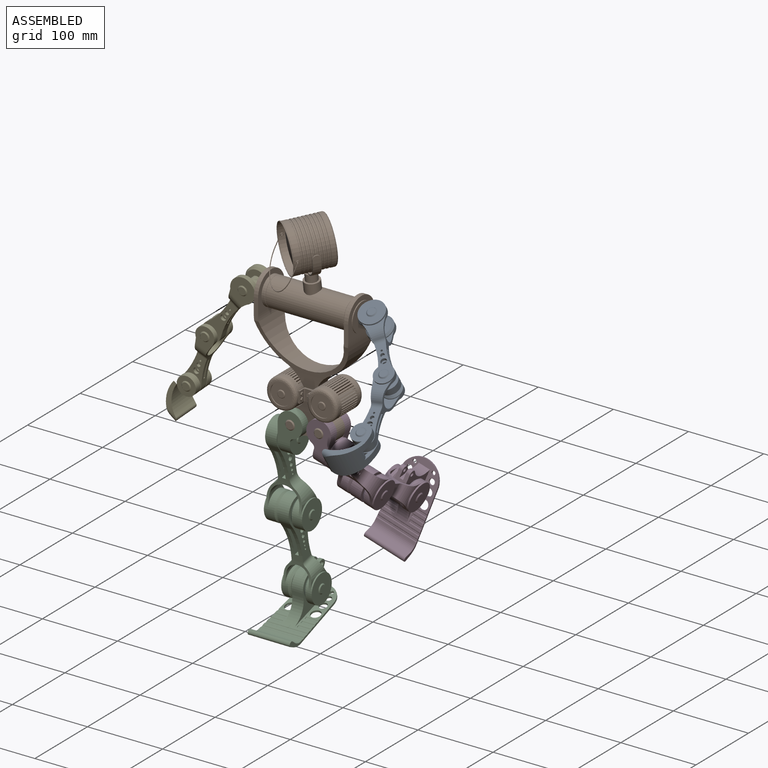
[diagram: assembled view]
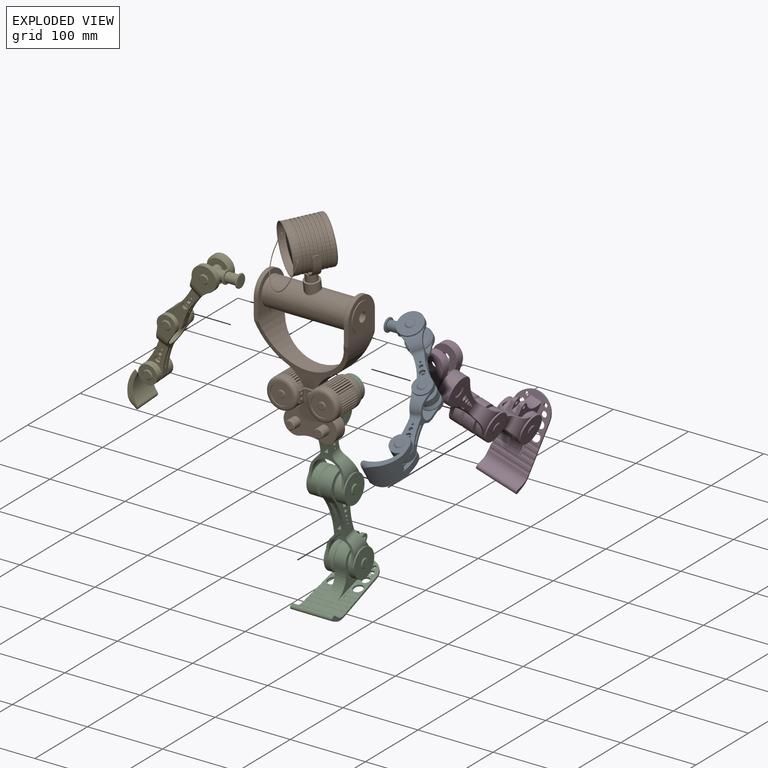
[diagram: exploded view]
GUIDED TOUR — MATED ASSEMBLY WITH SUBASSEMBLIES (Onshape document 580a5c8aa3d22f110acb5839, AutoMate assembly 580a5c8aa3d22f110acb5839_b2d923b6b7351d410fa2428a_1e528fcd05521dbd207c472a_default)

This assembly has 22 component occurrences arranged in 5 top-level units: 0 individual components plus 5 subassemblies (S0, S1, S2, S3, S4). The tour has two levels: first the top level, where each subassembly is treated as one rigid unit; then each subassembly is toured internally in its own section (nesting deeper than one subassembly level is flattened into its subassembly's section).

Components are labeled P0..P21 across the whole record; subassembly units are labeled S0..S4. A mate is a constraint between two units; its type names the relative motion it leaves free:
  FASTENED — locks the two components together rigidly (no relative motion),
  REVOLUTE — leaves rotation about the listed axis free (a hinge).
Axis/direction vectors are unit vectors and 'through' points are millimeter coordinates, both in the assembly's world frame.

TOP-LEVEL MATES (between units; each subassembly's internal mates are listed in its own section)
  1. REVOLUTE "left_shoulder_sagittal": S0 <-> S1, axis (-1.000, 0.000, 0.000) through (64.17, -11.40, 77.47) mm
  2. REVOLUTE "right_hip_frontal": S1 <-> S2, axis (0.000, -1.000, 0.000) through (-19.01, -30.45, -67.52) mm
  3. REVOLUTE "left_hip_frontal": S1 <-> S3, axis (0.000, -1.000, 0.000) through (19.09, -30.45, -67.52) mm

TOP-LEVEL ASSEMBLY ORDER
  1. S1 — the base component [order heuristic]
  2. S0 [order heuristic]
  3. S2 [order heuristic]
  4. S3 [order heuristic]
  5. S4 [order heuristic]
Order-tag legend:
  [order heuristic] — this assembly is geometrically interlocked (no collision-free removal order exists), so components are listed in mate-graph order; insertion feasibility is not verified.

Of the 22 component occurrences, 5 carry the full construction recipe — the FeatureScript program that regenerates the part's solid from scratch; the rest are supplied as boundary geometry only. Each toured unit is shown spotlighted twice — assembled, then exploded with a leader line back to its socket (green = recipe-attached component, orange = geometry-only, blue = subassembly unit; the rest desaturated gray).
NOTE — document 2 of 3 of this assembly tour. The two overview renders and the header above are repeated from document 1; the component sections below continue where the previous document stopped.
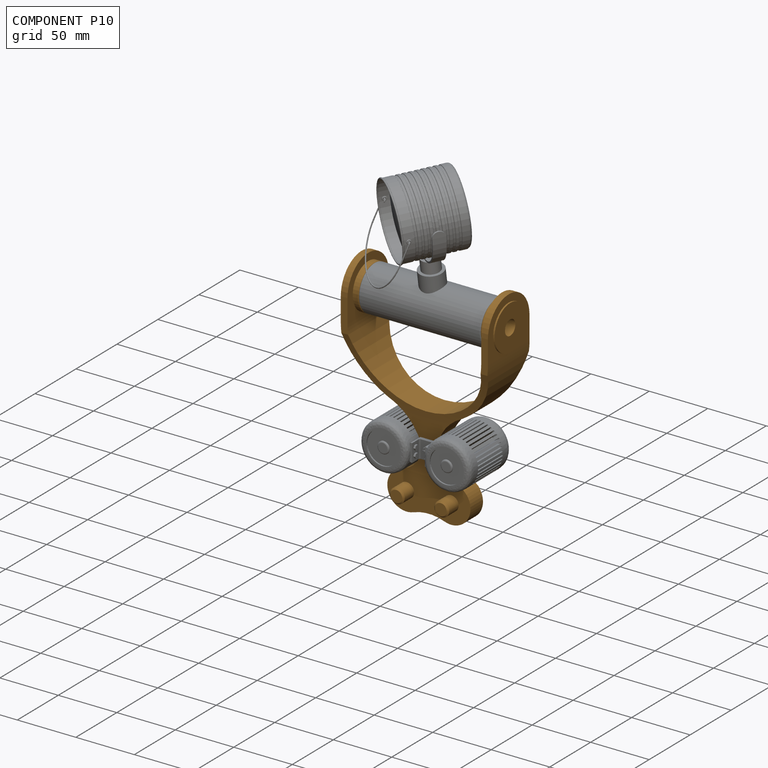
[diagram: component P10 — assembled]
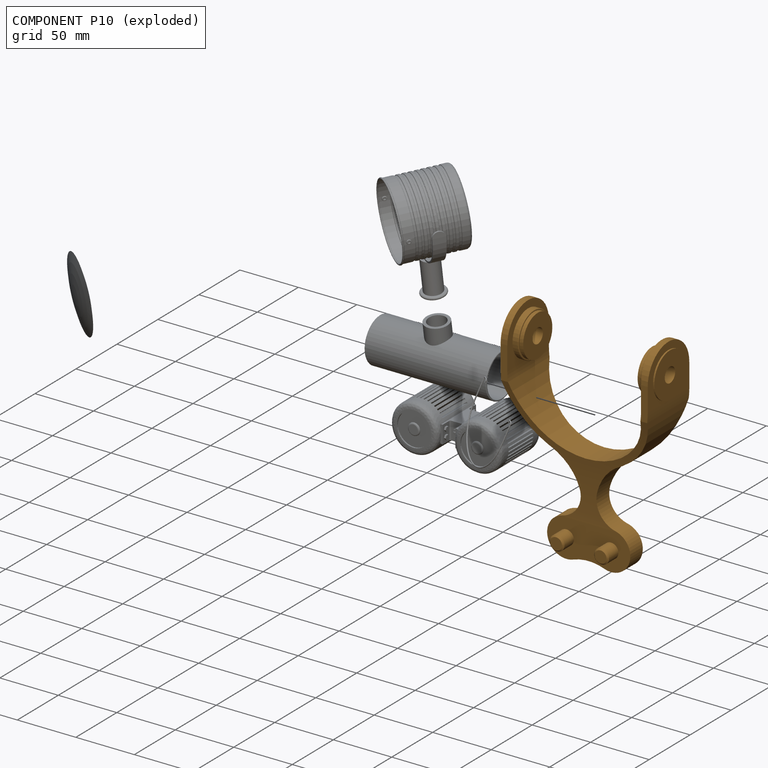
[diagram: component P10 — exploded]
COMPONENT P10 — geometry summary (no construction recipe available for this part):
  bounding box: 186.9 x 128.3 x 50.8 mm
  B-rep topology: 1 solid, 54 faces, 252 edges
  volume: 130386 mm^3 (11% of its bounding box)
  symmetry: 2-fold rotationally symmetric about the z axis; mirror-symmetric across its x mid-plane, y mid-plane
Held by: FASTENED mate "Fastened 1" to P4; REVOLUTE mate "neck_sagittal" to P12; REVOLUTE mate "neck_sagittal" to P12; FASTENED mate "Fastened 1" to P4.
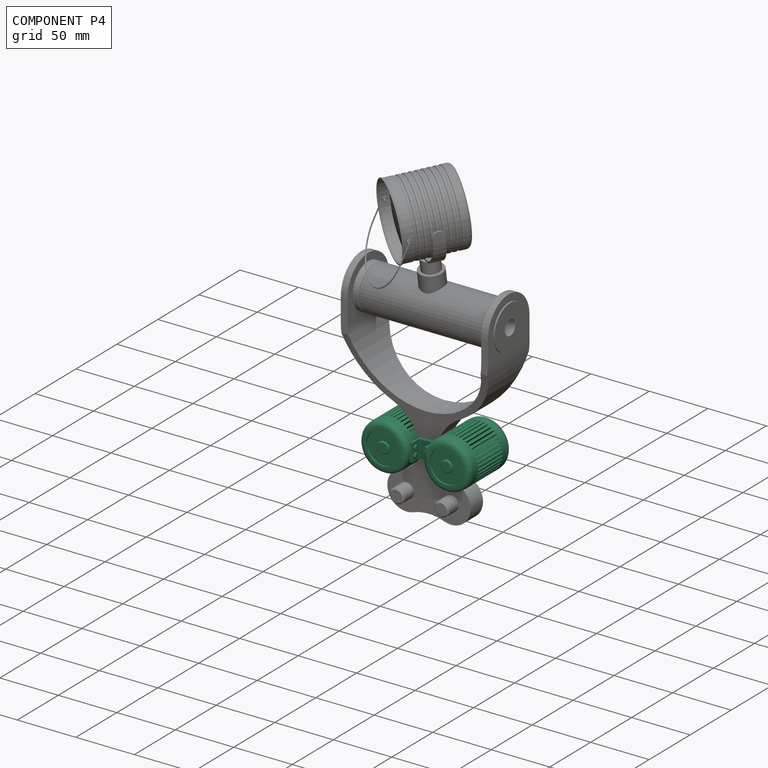
[diagram: component P4 — assembled]
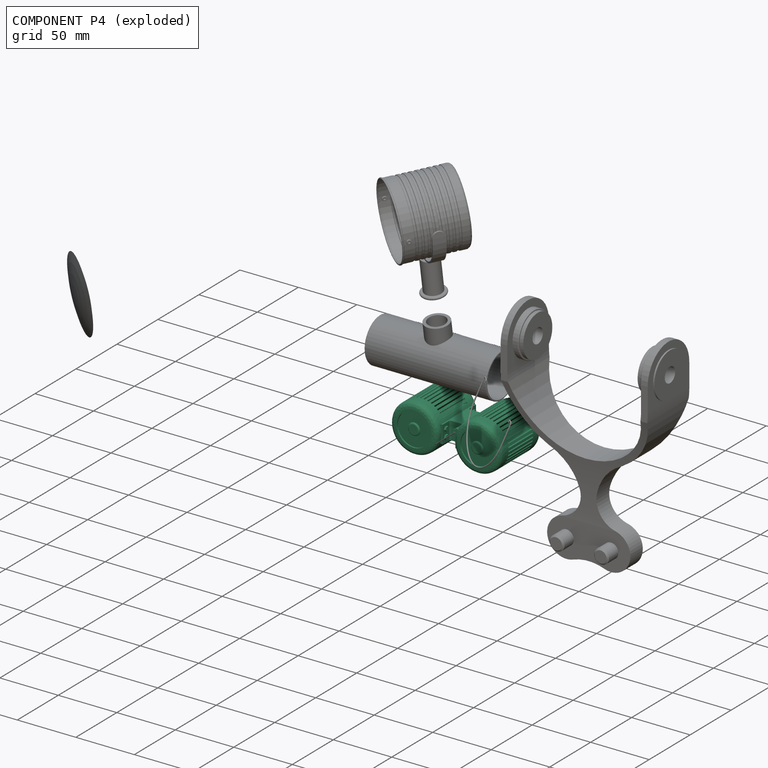
[diagram: component P4 — exploded]
COMPONENT P4 — recipe-attached (CADFS 00294734, mesh-verified: the recipe's output STEP matches this component's geometry to below the mesh-comparison resolution (tessellation chordal tolerance ~0.172 mm)).
Held by: FASTENED mate "Fastened 1" to P10; FASTENED mate "Fastened 1" to P10.
Construction recipe (FeatureScript — the CAD program that rebuilds this solid; sketch coordinates are in the units given by the * unit suffixes, e.g. mm):

FeatureScript 1511;
import(path : "onshape/std/geometry.fs", version : "1511.0");
import(path : "onshape/std/common.fs", version : "1511.0");
const mm = millimeter;
const VERTEX = EntityType.VERTEX;
const EDGE = EntityType.EDGE;
const FACE = EntityType.FACE;
const BODY = EntityType.BODY;
function v(x, y){return vector(x, y);}
function OD(order){return orderDisambiguation(order);}
function OSD(set){return originalSetDisambiguation(set);}
function TD(topology){return topologyDisambiguation(topology);}
function TDD(query){return trueDependencyDisambiguation(query);}
function sQuery(a, b, c) {return sketchEntityQuery(a, b, c);}

annotation { "Feature Type Name" : "Feature", "Feature Type Description" : "" }
export const myFeature = defineFeature(function(context is Context, id is Id, definition is map)
    precondition{}
    {
        {
            var Q0;
            Q0=qCreatedBy(makeId("Front.planeOp"),FACE);
            var sketch = newSketch(context, id + "F0", { "sketchPlane" : qUnion([Q0])});
            skArc(sketch, "E0", {"start": v(26.53, 38.5) * mm, "mid": v(31.42, 78.66) * mm, "end": v(18.88, 40.2) * mm});
            skCircle(sketch, "E1", {"center": v(-27.02, 58.82) * mm, "radius": 20.32 * mm});
            skArc(sketch, "E2", {"start": v(18.88, 40.2) * mm, "mid": v(22.62, 38.98) * mm, "end": v(26.53, 38.5) * mm});
            skSolve(sketch);
        }
        {
            var Q0;
            Q0=qSketchRegion(id+"F0",true);
            extrude(context, id + "F1", {"entities" : qUnion([Q0]), "endBound" : BoundingType.SYMMETRIC, "depth" : 50.8 * mm});
        }
        {
            var Q0;
            Q0=qCreatedBy(makeId("Front.planeOp"),FACE);
            var sketch = newSketch(context, id + "F2", { "sketchPlane" : qUnion([Q0])});
            skLineSegment(sketch, "E3.1.0", {"start": v(13.83, 74.28) * mm, "end": v(17.03, 70.33) * mm});
            skLineSegment(sketch, "E3.1.1", {"start": v(13.07, 73.6) * mm, "end": v(16.65, 69.99) * mm});
            skLineSegment(sketch, "E3.1.2", {"start": v(13.07, 73.6) * mm, "end": v(13.83, 74.28) * mm});
            skLineSegment(sketch, "E3.1.3", {"start": v(16.65, 69.99) * mm, "end": v(17.03, 70.33) * mm, "construction": true});
            skLineSegment(sketch, "E3.1.4", {"start": v(16.65, 69.99) * mm, "end": v(17.03, 70.33) * mm});
            skPoint(sketch, "E4", {"position": v(27.02, 58.82) * mm});
            skPoint(sketch, "E5", {"position": v(-27.02, 58.82) * mm});
            skLineSegment(sketch, "E6", {"start": v(27.02, 58.82) * mm, "end": v(13.45, 73.94) * mm, "construction": true});
            skLineSegment(sketch, "E7.1.0", {"start": v(-13.07, 73.6) * mm, "end": v(-16.65, 69.99) * mm});
            skLineSegment(sketch, "E7.1.1", {"start": v(-13.83, 74.28) * mm, "end": v(-17.03, 70.33) * mm});
            skLineSegment(sketch, "E7.1.2", {"start": v(-13.83, 74.28) * mm, "end": v(-13.07, 73.6) * mm});
            skLineSegment(sketch, "E7.1.3", {"start": v(-17.03, 70.33) * mm, "end": v(-16.65, 69.99) * mm, "construction": true});
            skLineSegment(sketch, "E7.1.4", {"start": v(-17.03, 70.33) * mm, "end": v(-16.65, 69.99) * mm});
            skLineSegment(sketch, "E8", {"start": v(-27.02, 58.82) * mm, "end": v(-13.45, 73.94) * mm, "construction": true});
            skLineSegment(sketch, "E9.1.0", {"start": v(11.57, 72.03) * mm, "end": v(15.35, 68.63) * mm});
            skLineSegment(sketch, "E9.1.1", {"start": v(10.93, 71.24) * mm, "end": v(15.03, 68.23) * mm});
            skLineSegment(sketch, "E9.1.2", {"start": v(10.93, 71.24) * mm, "end": v(11.57, 72.03) * mm});
            skLineSegment(sketch, "E9.1.3", {"start": v(15.03, 68.23) * mm, "end": v(15.35, 68.63) * mm, "construction": true});
            skLineSegment(sketch, "E9.1.4", {"start": v(15.03, 68.23) * mm, "end": v(15.35, 68.63) * mm});
            skLineSegment(sketch, "E9.2.0", {"start": v(9.7, 69.45) * mm, "end": v(13.96, 66.68) * mm});
            skLineSegment(sketch, "E9.2.1", {"start": v(9.18, 68.57) * mm, "end": v(13.7, 66.24) * mm});
            skLineSegment(sketch, "E9.2.2", {"start": v(9.18, 68.57) * mm, "end": v(9.7, 69.45) * mm});
            skLineSegment(sketch, "E9.2.3", {"start": v(13.7, 66.24) * mm, "end": v(13.96, 66.68) * mm, "construction": true});
            skLineSegment(sketch, "E9.2.4", {"start": v(13.7, 66.24) * mm, "end": v(13.96, 66.68) * mm});
            skLineSegment(sketch, "E9.15.0", {"start": v(25.41, 38.55) * mm, "end": v(25.94, 43.62) * mm});
            skLineSegment(sketch, "E9.15.1", {"start": v(26.43, 38.5) * mm, "end": v(26.45, 43.59) * mm});
            skLineSegment(sketch, "E9.15.2", {"start": v(26.43, 38.5) * mm, "end": v(25.41, 38.55) * mm});
            skLineSegment(sketch, "E9.15.3", {"start": v(26.45, 43.59) * mm, "end": v(25.94, 43.62) * mm, "construction": true});
            skLineSegment(sketch, "E9.15.4", {"start": v(26.45, 43.59) * mm, "end": v(25.94, 43.62) * mm});
            skLineSegment(sketch, "E9.16.0", {"start": v(28.6, 38.55) * mm, "end": v(28.33, 43.63) * mm});
            skLineSegment(sketch, "E9.16.1", {"start": v(29.61, 38.66) * mm, "end": v(28.84, 43.69) * mm});
            skLineSegment(sketch, "E9.16.2", {"start": v(29.61, 38.66) * mm, "end": v(28.6, 38.55) * mm});
            skLineSegment(sketch, "E9.16.3", {"start": v(28.84, 43.69) * mm, "end": v(28.33, 43.63) * mm, "construction": true});
            skLineSegment(sketch, "E9.16.4", {"start": v(28.84, 43.69) * mm, "end": v(28.33, 43.63) * mm});
            skLineSegment(sketch, "E9.17.0", {"start": v(31.75, 39.05) * mm, "end": v(30.7, 44.03) * mm});
            skLineSegment(sketch, "E9.17.1", {"start": v(32.73, 39.31) * mm, "end": v(31.18, 44.16) * mm});
            skLineSegment(sketch, "E9.17.2", {"start": v(32.73, 39.31) * mm, "end": v(31.75, 39.05) * mm});
            skLineSegment(sketch, "E9.17.3", {"start": v(31.18, 44.16) * mm, "end": v(30.7, 44.03) * mm, "construction": true});
            skLineSegment(sketch, "E9.17.4", {"start": v(31.18, 44.16) * mm, "end": v(30.7, 44.03) * mm});
            skLineSegment(sketch, "E9.18.0", {"start": v(34.79, 40.03) * mm, "end": v(32.96, 44.78) * mm});
            skLineSegment(sketch, "E9.18.1", {"start": v(35.72, 40.45) * mm, "end": v(33.42, 44.99) * mm});
            skLineSegment(sketch, "E9.18.2", {"start": v(35.72, 40.45) * mm, "end": v(34.79, 40.03) * mm});
            skLineSegment(sketch, "E9.18.3", {"start": v(33.42, 44.99) * mm, "end": v(32.96, 44.78) * mm, "construction": true});
            skLineSegment(sketch, "E9.18.4", {"start": v(33.42, 44.99) * mm, "end": v(32.96, 44.78) * mm});
            skLineSegment(sketch, "E9.19.0", {"start": v(37.63, 41.48) * mm, "end": v(35.08, 45.89) * mm});
            skLineSegment(sketch, "E9.19.1", {"start": v(38.48, 42.03) * mm, "end": v(35.5, 46.16) * mm});
            skLineSegment(sketch, "E9.19.2", {"start": v(38.48, 42.03) * mm, "end": v(37.63, 41.48) * mm});
            skLineSegment(sketch, "E9.19.3", {"start": v(35.5, 46.16) * mm, "end": v(35.08, 45.89) * mm, "construction": true});
            skLineSegment(sketch, "E9.19.4", {"start": v(35.5, 46.16) * mm, "end": v(35.08, 45.89) * mm});
            skLineSegment(sketch, "E9.20.0", {"start": v(40.21, 43.35) * mm, "end": v(37, 47.3) * mm});
            skLineSegment(sketch, "E9.20.1", {"start": v(40.97, 44.03) * mm, "end": v(37.38, 47.65) * mm});
            skLineSegment(sketch, "E9.20.2", {"start": v(40.97, 44.03) * mm, "end": v(40.21, 43.35) * mm});
            skLineSegment(sketch, "E9.20.3", {"start": v(37.38, 47.65) * mm, "end": v(37, 47.3) * mm, "construction": true});
            skLineSegment(sketch, "E9.20.4", {"start": v(37.38, 47.65) * mm, "end": v(37, 47.3) * mm});
            skLineSegment(sketch, "E9.21.0", {"start": v(42.47, 45.6) * mm, "end": v(38.68, 49.01) * mm});
            skLineSegment(sketch, "E9.21.1", {"start": v(43.1, 46.4) * mm, "end": v(39, 49.4) * mm});
            skLineSegment(sketch, "E9.21.2", {"start": v(43.1, 46.4) * mm, "end": v(42.47, 45.6) * mm});
            skLineSegment(sketch, "E9.21.3", {"start": v(39, 49.4) * mm, "end": v(38.68, 49.01) * mm, "construction": true});
            skLineSegment(sketch, "E9.21.4", {"start": v(39, 49.4) * mm, "end": v(38.68, 49.01) * mm});
            skLineSegment(sketch, "E9.22.0", {"start": v(44.34, 48.19) * mm, "end": v(40.07, 50.96) * mm});
            skLineSegment(sketch, "E9.22.1", {"start": v(44.85, 49.07) * mm, "end": v(40.33, 51.4) * mm});
            skLineSegment(sketch, "E9.22.2", {"start": v(44.85, 49.07) * mm, "end": v(44.34, 48.19) * mm});
            skLineSegment(sketch, "E9.22.3", {"start": v(40.33, 51.4) * mm, "end": v(40.07, 50.96) * mm, "construction": true});
            skLineSegment(sketch, "E9.22.4", {"start": v(40.33, 51.4) * mm, "end": v(40.07, 50.96) * mm});
            skLineSegment(sketch, "E9.23.0", {"start": v(45.8, 51.03) * mm, "end": v(41.14, 53.1) * mm});
            skLineSegment(sketch, "E9.23.1", {"start": v(46.16, 51.98) * mm, "end": v(41.33, 53.57) * mm});
            skLineSegment(sketch, "E9.23.2", {"start": v(46.16, 51.98) * mm, "end": v(45.8, 51.03) * mm});
            skLineSegment(sketch, "E9.23.3", {"start": v(41.33, 53.57) * mm, "end": v(41.14, 53.1) * mm, "construction": true});
            skLineSegment(sketch, "E9.23.4", {"start": v(41.33, 53.57) * mm, "end": v(41.14, 53.1) * mm});
            skLineSegment(sketch, "E9.24.0", {"start": v(46.78, 54.06) * mm, "end": v(41.86, 55.37) * mm});
            skLineSegment(sketch, "E9.24.1", {"start": v(47, 55.05) * mm, "end": v(41.97, 55.87) * mm});
            skLineSegment(sketch, "E9.24.2", {"start": v(47, 55.05) * mm, "end": v(46.78, 54.06) * mm});
            skLineSegment(sketch, "E9.24.3", {"start": v(41.97, 55.87) * mm, "end": v(41.86, 55.37) * mm, "construction": true});
            skLineSegment(sketch, "E9.24.4", {"start": v(41.97, 55.87) * mm, "end": v(41.86, 55.37) * mm});
            skLineSegment(sketch, "E9.25.0", {"start": v(47.28, 57.21) * mm, "end": v(42.22, 57.74) * mm});
            skLineSegment(sketch, "E9.25.1", {"start": v(47.34, 58.23) * mm, "end": v(42.25, 58.25) * mm});
            skLineSegment(sketch, "E9.25.2", {"start": v(47.34, 58.23) * mm, "end": v(47.28, 57.21) * mm});
            skLineSegment(sketch, "E9.25.3", {"start": v(42.25, 58.25) * mm, "end": v(42.22, 57.74) * mm, "construction": true});
            skLineSegment(sketch, "E9.25.4", {"start": v(42.25, 58.25) * mm, "end": v(42.22, 57.74) * mm});
            skLineSegment(sketch, "E9.26.0", {"start": v(47.28, 60.4) * mm, "end": v(42.2, 60.13) * mm});
            skLineSegment(sketch, "E9.26.1", {"start": v(47.18, 61.41) * mm, "end": v(42.15, 60.64) * mm});
            skLineSegment(sketch, "E9.26.2", {"start": v(47.18, 61.41) * mm, "end": v(47.28, 60.4) * mm});
            skLineSegment(sketch, "E9.26.3", {"start": v(42.15, 60.64) * mm, "end": v(42.2, 60.13) * mm, "construction": true});
            skLineSegment(sketch, "E9.26.4", {"start": v(42.15, 60.64) * mm, "end": v(42.2, 60.13) * mm});
            skLineSegment(sketch, "E9.27.0", {"start": v(46.79, 63.55) * mm, "end": v(41.8, 62.5) * mm});
            skLineSegment(sketch, "E9.27.1", {"start": v(46.52, 64.53) * mm, "end": v(41.68, 62.98) * mm});
            skLineSegment(sketch, "E9.27.2", {"start": v(46.52, 64.53) * mm, "end": v(46.79, 63.55) * mm});
            skLineSegment(sketch, "E9.27.3", {"start": v(41.68, 62.98) * mm, "end": v(41.8, 62.5) * mm, "construction": true});
            skLineSegment(sketch, "E9.27.4", {"start": v(41.68, 62.98) * mm, "end": v(41.8, 62.5) * mm});
            skLineSegment(sketch, "E9.28.0", {"start": v(45.8, 66.59) * mm, "end": v(41.05, 64.76) * mm});
            skLineSegment(sketch, "E9.28.1", {"start": v(45.4, 67.51) * mm, "end": v(40.85, 65.22) * mm});
            skLineSegment(sketch, "E9.28.2", {"start": v(45.4, 67.51) * mm, "end": v(45.8, 66.59) * mm});
            skLineSegment(sketch, "E9.28.3", {"start": v(40.85, 65.22) * mm, "end": v(41.05, 64.76) * mm, "construction": true});
            skLineSegment(sketch, "E9.28.4", {"start": v(40.85, 65.22) * mm, "end": v(41.05, 64.76) * mm});
            skLineSegment(sketch, "E9.29.0", {"start": v(44.36, 69.43) * mm, "end": v(39.95, 66.88) * mm});
            skLineSegment(sketch, "E9.29.1", {"start": v(43.8, 70.28) * mm, "end": v(39.67, 67.3) * mm});
            skLineSegment(sketch, "E9.29.2", {"start": v(43.8, 70.28) * mm, "end": v(44.36, 69.43) * mm});
            skLineSegment(sketch, "E9.29.3", {"start": v(39.67, 67.3) * mm, "end": v(39.95, 66.88) * mm, "construction": true});
            skLineSegment(sketch, "E9.29.4", {"start": v(39.67, 67.3) * mm, "end": v(39.95, 66.88) * mm});
            skLineSegment(sketch, "E9.30.0", {"start": v(42.48, 72) * mm, "end": v(38.53, 68.8) * mm});
            skLineSegment(sketch, "E9.30.1", {"start": v(41.8, 72.77) * mm, "end": v(38.2, 69.18) * mm});
            skLineSegment(sketch, "E9.30.2", {"start": v(41.8, 72.77) * mm, "end": v(42.48, 72) * mm});
            skLineSegment(sketch, "E9.30.3", {"start": v(38.2, 69.18) * mm, "end": v(38.53, 68.8) * mm, "construction": true});
            skLineSegment(sketch, "E9.30.4", {"start": v(38.2, 69.18) * mm, "end": v(38.53, 68.8) * mm});
            skLineSegment(sketch, "E9.31.0", {"start": v(40.23, 74.27) * mm, "end": v(36.83, 70.48) * mm});
            skLineSegment(sketch, "E9.31.1", {"start": v(39.44, 74.9) * mm, "end": v(36.43, 70.8) * mm});
            skLineSegment(sketch, "E9.31.2", {"start": v(39.44, 74.9) * mm, "end": v(40.23, 74.27) * mm});
            skLineSegment(sketch, "E9.31.3", {"start": v(36.43, 70.8) * mm, "end": v(36.83, 70.48) * mm, "construction": true});
            skLineSegment(sketch, "E9.31.4", {"start": v(36.43, 70.8) * mm, "end": v(36.83, 70.48) * mm});
            skLineSegment(sketch, "E9.32.0", {"start": v(37.65, 76.14) * mm, "end": v(34.88, 71.87) * mm});
            skLineSegment(sketch, "E9.32.1", {"start": v(36.77, 76.65) * mm, "end": v(34.44, 72.13) * mm});
            skLineSegment(sketch, "E9.32.2", {"start": v(36.77, 76.65) * mm, "end": v(37.65, 76.14) * mm});
            skLineSegment(sketch, "E9.32.3", {"start": v(34.44, 72.13) * mm, "end": v(34.88, 71.87) * mm, "construction": true});
            skLineSegment(sketch, "E9.32.4", {"start": v(34.44, 72.13) * mm, "end": v(34.88, 71.87) * mm});
            skLineSegment(sketch, "E9.33.0", {"start": v(34.8, 77.6) * mm, "end": v(32.74, 72.94) * mm});
            skLineSegment(sketch, "E9.33.1", {"start": v(33.86, 77.96) * mm, "end": v(32.27, 73.13) * mm});
            skLineSegment(sketch, "E9.33.2", {"start": v(33.86, 77.96) * mm, "end": v(34.8, 77.6) * mm});
            skLineSegment(sketch, "E9.33.3", {"start": v(32.27, 73.13) * mm, "end": v(32.74, 72.94) * mm, "construction": true});
            skLineSegment(sketch, "E9.33.4", {"start": v(32.27, 73.13) * mm, "end": v(32.74, 72.94) * mm});
            skLineSegment(sketch, "E9.34.0", {"start": v(31.78, 78.58) * mm, "end": v(30.46, 73.66) * mm});
            skLineSegment(sketch, "E9.34.1", {"start": v(30.78, 78.8) * mm, "end": v(29.96, 73.77) * mm});
            skLineSegment(sketch, "E9.34.2", {"start": v(30.78, 78.8) * mm, "end": v(31.78, 78.58) * mm});
            skLineSegment(sketch, "E9.34.3", {"start": v(29.96, 73.77) * mm, "end": v(30.46, 73.66) * mm, "construction": true});
            skLineSegment(sketch, "E9.34.4", {"start": v(29.96, 73.77) * mm, "end": v(30.46, 73.66) * mm});
            skLineSegment(sketch, "E9.35.0", {"start": v(28.63, 79.08) * mm, "end": v(28.1, 74.02) * mm});
            skLineSegment(sketch, "E9.35.1", {"start": v(27.61, 79.14) * mm, "end": v(27.59, 74.05) * mm});
            skLineSegment(sketch, "E9.35.2", {"start": v(27.61, 79.14) * mm, "end": v(28.63, 79.08) * mm});
            skLineSegment(sketch, "E9.35.3", {"start": v(27.59, 74.05) * mm, "end": v(28.1, 74.02) * mm, "construction": true});
            skLineSegment(sketch, "E9.35.4", {"start": v(27.59, 74.05) * mm, "end": v(28.1, 74.02) * mm});
            skLineSegment(sketch, "E9.36.0", {"start": v(25.44, 79.08) * mm, "end": v(25.7, 74) * mm});
            skLineSegment(sketch, "E9.36.1", {"start": v(24.42, 78.98) * mm, "end": v(25.2, 73.95) * mm});
            skLineSegment(sketch, "E9.36.2", {"start": v(24.42, 78.98) * mm, "end": v(25.44, 79.08) * mm});
            skLineSegment(sketch, "E9.36.3", {"start": v(25.2, 73.95) * mm, "end": v(25.7, 74) * mm, "construction": true});
            skLineSegment(sketch, "E9.36.4", {"start": v(25.2, 73.95) * mm, "end": v(25.7, 74) * mm});
            skLineSegment(sketch, "E9.37.0", {"start": v(22.28, 78.59) * mm, "end": v(23.35, 73.6) * mm});
            skLineSegment(sketch, "E9.37.1", {"start": v(21.3, 78.32) * mm, "end": v(22.86, 73.48) * mm});
            skLineSegment(sketch, "E9.37.2", {"start": v(21.3, 78.32) * mm, "end": v(22.28, 78.59) * mm});
            skLineSegment(sketch, "E9.37.3", {"start": v(22.86, 73.48) * mm, "end": v(23.35, 73.6) * mm, "construction": true});
            skLineSegment(sketch, "E9.37.4", {"start": v(22.86, 73.48) * mm, "end": v(23.35, 73.6) * mm});
            skLineSegment(sketch, "E9.38.0", {"start": v(19.25, 77.6) * mm, "end": v(21.08, 72.85) * mm});
            skLineSegment(sketch, "E9.38.1", {"start": v(18.32, 77.19) * mm, "end": v(20.61, 72.65) * mm});
            skLineSegment(sketch, "E9.38.2", {"start": v(18.32, 77.19) * mm, "end": v(19.25, 77.6) * mm});
            skLineSegment(sketch, "E9.38.3", {"start": v(20.61, 72.65) * mm, "end": v(21.08, 72.85) * mm, "construction": true});
            skLineSegment(sketch, "E9.38.4", {"start": v(20.61, 72.65) * mm, "end": v(21.08, 72.85) * mm});
            skLineSegment(sketch, "E9.39.0", {"start": v(16.4, 76.15) * mm, "end": v(18.96, 71.75) * mm});
            skLineSegment(sketch, "E9.39.1", {"start": v(15.56, 75.6) * mm, "end": v(18.53, 71.47) * mm});
            skLineSegment(sketch, "E9.39.2", {"start": v(15.56, 75.6) * mm, "end": v(16.4, 76.15) * mm});
            skLineSegment(sketch, "E9.39.3", {"start": v(18.53, 71.47) * mm, "end": v(18.96, 71.75) * mm, "construction": true});
            skLineSegment(sketch, "E9.39.4", {"start": v(18.53, 71.47) * mm, "end": v(18.96, 71.75) * mm});
            skLineSegment(sketch, "E10.1.0", {"start": v(-15.56, 75.6) * mm, "end": v(-18.53, 71.47) * mm});
            skLineSegment(sketch, "E10.1.1", {"start": v(-16.4, 76.15) * mm, "end": v(-18.96, 71.75) * mm});
            skLineSegment(sketch, "E10.1.2", {"start": v(-16.4, 76.15) * mm, "end": v(-15.56, 75.6) * mm});
            skLineSegment(sketch, "E10.1.3", {"start": v(-18.96, 71.75) * mm, "end": v(-18.53, 71.47) * mm, "construction": true});
            skLineSegment(sketch, "E10.1.4", {"start": v(-18.96, 71.75) * mm, "end": v(-18.53, 71.47) * mm});
            skLineSegment(sketch, "E10.2.0", {"start": v(-18.32, 77.19) * mm, "end": v(-20.61, 72.65) * mm});
            skLineSegment(sketch, "E10.2.1", {"start": v(-19.25, 77.6) * mm, "end": v(-21.08, 72.85) * mm});
            skLineSegment(sketch, "E10.2.2", {"start": v(-19.25, 77.6) * mm, "end": v(-18.32, 77.19) * mm});
            skLineSegment(sketch, "E10.2.3", {"start": v(-21.08, 72.85) * mm, "end": v(-20.61, 72.65) * mm, "construction": true});
            skLineSegment(sketch, "E10.2.4", {"start": v(-21.08, 72.85) * mm, "end": v(-20.61, 72.65) * mm});
            skLineSegment(sketch, "E10.3.0", {"start": v(-21.3, 78.32) * mm, "end": v(-22.86, 73.48) * mm});
            skLineSegment(sketch, "E10.3.1", {"start": v(-22.28, 78.59) * mm, "end": v(-23.35, 73.6) * mm});
            skLineSegment(sketch, "E10.3.2", {"start": v(-22.28, 78.59) * mm, "end": v(-21.3, 78.32) * mm});
            skLineSegment(sketch, "E10.3.3", {"start": v(-23.35, 73.6) * mm, "end": v(-22.86, 73.48) * mm, "construction": true});
            skLineSegment(sketch, "E10.3.4", {"start": v(-23.35, 73.6) * mm, "end": v(-22.86, 73.48) * mm});
            skLineSegment(sketch, "E10.4.0", {"start": v(-24.42, 78.98) * mm, "end": v(-25.2, 73.95) * mm});
            skLineSegment(sketch, "E10.4.1", {"start": v(-25.44, 79.08) * mm, "end": v(-25.7, 74) * mm});
            skLineSegment(sketch, "E10.4.2", {"start": v(-25.44, 79.08) * mm, "end": v(-24.42, 78.98) * mm});
            skLineSegment(sketch, "E10.4.3", {"start": v(-25.7, 74) * mm, "end": v(-25.2, 73.95) * mm, "construction": true});
            skLineSegment(sketch, "E10.4.4", {"start": v(-25.7, 74) * mm, "end": v(-25.2, 73.95) * mm});
            skLineSegment(sketch, "E10.5.0", {"start": v(-27.61, 79.14) * mm, "end": v(-27.59, 74.05) * mm});
            skLineSegment(sketch, "E10.5.1", {"start": v(-28.63, 79.08) * mm, "end": v(-28.1, 74.02) * mm});
            skLineSegment(sketch, "E10.5.2", {"start": v(-28.63, 79.08) * mm, "end": v(-27.61, 79.14) * mm});
            skLineSegment(sketch, "E10.5.3", {"start": v(-28.1, 74.02) * mm, "end": v(-27.59, 74.05) * mm, "construction": true});
            skLineSegment(sketch, "E10.5.4", {"start": v(-28.1, 74.02) * mm, "end": v(-27.59, 74.05) * mm});
            skLineSegment(sketch, "E10.6.0", {"start": v(-30.78, 78.8) * mm, "end": v(-29.96, 73.77) * mm});
            skLineSegment(sketch, "E10.6.1", {"start": v(-31.78, 78.58) * mm, "end": v(-30.46, 73.66) * mm});
            skLineSegment(sketch, "E10.6.2", {"start": v(-31.78, 78.58) * mm, "end": v(-30.78, 78.8) * mm});
            skLineSegment(sketch, "E10.6.3", {"start": v(-30.46, 73.66) * mm, "end": v(-29.96, 73.77) * mm, "construction": true});
            skLineSegment(sketch, "E10.6.4", {"start": v(-30.46, 73.66) * mm, "end": v(-29.96, 73.77) * mm});
            skLineSegment(sketch, "E10.7.0", {"start": v(-33.86, 77.96) * mm, "end": v(-32.27, 73.13) * mm});
            skLineSegment(sketch, "E10.7.1", {"start": v(-34.8, 77.6) * mm, "end": v(-32.74, 72.94) * mm});
            skLineSegment(sketch, "E10.7.2", {"start": v(-34.8, 77.6) * mm, "end": v(-33.86, 77.96) * mm});
            skLineSegment(sketch, "E10.7.3", {"start": v(-32.74, 72.94) * mm, "end": v(-32.27, 73.13) * mm, "construction": true});
            skLineSegment(sketch, "E10.7.4", {"start": v(-32.74, 72.94) * mm, "end": v(-32.27, 73.13) * mm});
            skLineSegment(sketch, "E10.8.0", {"start": v(-36.77, 76.65) * mm, "end": v(-34.44, 72.13) * mm});
            skLineSegment(sketch, "E10.8.1", {"start": v(-37.65, 76.14) * mm, "end": v(-34.88, 71.87) * mm});
            skLineSegment(sketch, "E10.8.2", {"start": v(-37.65, 76.14) * mm, "end": v(-36.77, 76.65) * mm});
            skLineSegment(sketch, "E10.8.3", {"start": v(-34.88, 71.87) * mm, "end": v(-34.44, 72.13) * mm, "construction": true});
            skLineSegment(sketch, "E10.8.4", {"start": v(-34.88, 71.87) * mm, "end": v(-34.44, 72.13) * mm});
            skLineSegment(sketch, "E10.9.0", {"start": v(-39.44, 74.9) * mm, "end": v(-36.43, 70.8) * mm});
            skLineSegment(sketch, "E10.9.1", {"start": v(-40.23, 74.27) * mm, "end": v(-36.83, 70.48) * mm});
            skLineSegment(sketch, "E10.9.2", {"start": v(-40.23, 74.27) * mm, "end": v(-39.44, 74.9) * mm});
            skLineSegment(sketch, "E10.9.3", {"start": v(-36.83, 70.48) * mm, "end": v(-36.43, 70.8) * mm, "construction": true});
            skLineSegment(sketch, "E10.9.4", {"start": v(-36.83, 70.48) * mm, "end": v(-36.43, 70.8) * mm});
            skLineSegment(sketch, "E10.10.0", {"start": v(-41.8, 72.77) * mm, "end": v(-38.2, 69.18) * mm});
            skLineSegment(sketch, "E10.10.1", {"start": v(-42.48, 72) * mm, "end": v(-38.53, 68.8) * mm});
            skLineSegment(sketch, "E10.10.2", {"start": v(-42.48, 72) * mm, "end": v(-41.8, 72.77) * mm});
            skLineSegment(sketch, "E10.10.3", {"start": v(-38.53, 68.8) * mm, "end": v(-38.2, 69.18) * mm, "construction": true});
            skLineSegment(sketch, "E10.10.4", {"start": v(-38.53, 68.8) * mm, "end": v(-38.2, 69.18) * mm});
            skLineSegment(sketch, "E10.11.0", {"start": v(-43.8, 70.28) * mm, "end": v(-39.67, 67.3) * mm});
            skLineSegment(sketch, "E10.11.1", {"start": v(-44.36, 69.43) * mm, "end": v(-39.95, 66.88) * mm});
            skLineSegment(sketch, "E10.11.2", {"start": v(-44.36, 69.43) * mm, "end": v(-43.8, 70.28) * mm});
            skLineSegment(sketch, "E10.11.3", {"start": v(-39.95, 66.88) * mm, "end": v(-39.67, 67.3) * mm, "construction": true});
            skLineSegment(sketch, "E10.11.4", {"start": v(-39.95, 66.88) * mm, "end": v(-39.67, 67.3) * mm});
            skLineSegment(sketch, "E10.12.0", {"start": v(-45.4, 67.51) * mm, "end": v(-40.85, 65.22) * mm});
            skLineSegment(sketch, "E10.12.1", {"start": v(-45.8, 66.59) * mm, "end": v(-41.05, 64.76) * mm});
            skLineSegment(sketch, "E10.12.2", {"start": v(-45.8, 66.59) * mm, "end": v(-45.4, 67.51) * mm});
            skLineSegment(sketch, "E10.12.3", {"start": v(-41.05, 64.76) * mm, "end": v(-40.85, 65.22) * mm, "construction": true});
            skLineSegment(sketch, "E10.12.4", {"start": v(-41.05, 64.76) * mm, "end": v(-40.85, 65.22) * mm});
            skLineSegment(sketch, "E10.13.0", {"start": v(-46.52, 64.53) * mm, "end": v(-41.68, 62.98) * mm});
            skLineSegment(sketch, "E10.13.1", {"start": v(-46.79, 63.55) * mm, "end": v(-41.8, 62.5) * mm});
            skLineSegment(sketch, "E10.13.2", {"start": v(-46.79, 63.55) * mm, "end": v(-46.52, 64.53) * mm});
            skLineSegment(sketch, "E10.13.3", {"start": v(-41.8, 62.5) * mm, "end": v(-41.68, 62.98) * mm, "construction": true});
            skLineSegment(sketch, "E10.13.4", {"start": v(-41.8, 62.5) * mm, "end": v(-41.68, 62.98) * mm});
            skLineSegment(sketch, "E10.14.0", {"start": v(-47.18, 61.41) * mm, "end": v(-42.15, 60.64) * mm});
            skLineSegment(sketch, "E10.14.1", {"start": v(-47.28, 60.4) * mm, "end": v(-42.2, 60.13) * mm});
            skLineSegment(sketch, "E10.14.2", {"start": v(-47.28, 60.4) * mm, "end": v(-47.18, 61.41) * mm});
            skLineSegment(sketch, "E10.14.3", {"start": v(-42.2, 60.13) * mm, "end": v(-42.15, 60.64) * mm, "construction": true});
            skLineSegment(sketch, "E10.14.4", {"start": v(-42.2, 60.13) * mm, "end": v(-42.15, 60.64) * mm});
            skLineSegment(sketch, "E10.15.0", {"start": v(-47.34, 58.23) * mm, "end": v(-42.25, 58.25) * mm});
            skLineSegment(sketch, "E10.15.1", {"start": v(-47.28, 57.21) * mm, "end": v(-42.22, 57.74) * mm});
            skLineSegment(sketch, "E10.15.2", {"start": v(-47.28, 57.21) * mm, "end": v(-47.34, 58.23) * mm});
            skLineSegment(sketch, "E10.15.3", {"start": v(-42.22, 57.74) * mm, "end": v(-42.25, 58.25) * mm, "construction": true});
            skLineSegment(sketch, "E10.15.4", {"start": v(-42.22, 57.74) * mm, "end": v(-42.25, 58.25) * mm});
            skLineSegment(sketch, "E10.16.0", {"start": v(-47, 55.05) * mm, "end": v(-41.97, 55.87) * mm});
            skLineSegment(sketch, "E10.16.1", {"start": v(-46.78, 54.06) * mm, "end": v(-41.86, 55.37) * mm});
            skLineSegment(sketch, "E10.16.2", {"start": v(-46.78, 54.06) * mm, "end": v(-47, 55.05) * mm});
            skLineSegment(sketch, "E10.16.3", {"start": v(-41.86, 55.37) * mm, "end": v(-41.97, 55.87) * mm, "construction": true});
            skLineSegment(sketch, "E10.16.4", {"start": v(-41.86, 55.37) * mm, "end": v(-41.97, 55.87) * mm});
            skLineSegment(sketch, "E10.17.0", {"start": v(-46.16, 51.98) * mm, "end": v(-41.33, 53.57) * mm});
            skLineSegment(sketch, "E10.17.1", {"start": v(-45.8, 51.03) * mm, "end": v(-41.14, 53.1) * mm});
            skLineSegment(sketch, "E10.17.2", {"start": v(-45.8, 51.03) * mm, "end": v(-46.16, 51.98) * mm});
            skLineSegment(sketch, "E10.17.3", {"start": v(-41.14, 53.1) * mm, "end": v(-41.33, 53.57) * mm, "construction": true});
            skLineSegment(sketch, "E10.17.4", {"start": v(-41.14, 53.1) * mm, "end": v(-41.33, 53.57) * mm});
            skLineSegment(sketch, "E10.18.0", {"start": v(-44.85, 49.07) * mm, "end": v(-40.33, 51.4) * mm});
            skLineSegment(sketch, "E10.18.1", {"start": v(-44.34, 48.19) * mm, "end": v(-40.07, 50.96) * mm});
            skLineSegment(sketch, "E10.18.2", {"start": v(-44.34, 48.19) * mm, "end": v(-44.85, 49.07) * mm});
            skLineSegment(sketch, "E10.18.3", {"start": v(-40.07, 50.96) * mm, "end": v(-40.33, 51.4) * mm, "construction": true});
            skLineSegment(sketch, "E10.18.4", {"start": v(-40.07, 50.96) * mm, "end": v(-40.33, 51.4) * mm});
            skLineSegment(sketch, "E10.19.0", {"start": v(-43.1, 46.4) * mm, "end": v(-39, 49.4) * mm});
            skLineSegment(sketch, "E10.19.1", {"start": v(-42.47, 45.6) * mm, "end": v(-38.68, 49.01) * mm});
            skLineSegment(sketch, "E10.19.2", {"start": v(-42.47, 45.6) * mm, "end": v(-43.1, 46.4) * mm});
            skLineSegment(sketch, "E10.19.3", {"start": v(-38.68, 49.01) * mm, "end": v(-39, 49.4) * mm, "construction": true});
            skLineSegment(sketch, "E10.19.4", {"start": v(-38.68, 49.01) * mm, "end": v(-39, 49.4) * mm});
            skLineSegment(sketch, "E10.20.0", {"start": v(-40.97, 44.03) * mm, "end": v(-37.38, 47.65) * mm});
            skLineSegment(sketch, "E10.20.1", {"start": v(-40.21, 43.35) * mm, "end": v(-37, 47.3) * mm});
            skLineSegment(sketch, "E10.20.2", {"start": v(-40.21, 43.35) * mm, "end": v(-40.97, 44.03) * mm});
            skLineSegment(sketch, "E10.20.3", {"start": v(-37, 47.3) * mm, "end": v(-37.38, 47.65) * mm, "construction": true});
            skLineSegment(sketch, "E10.20.4", {"start": v(-37, 47.3) * mm, "end": v(-37.38, 47.65) * mm});
            skLineSegment(sketch, "E10.21.0", {"start": v(-38.48, 42.03) * mm, "end": v(-35.5, 46.16) * mm});
            skLineSegment(sketch, "E10.21.1", {"start": v(-37.63, 41.48) * mm, "end": v(-35.08, 45.89) * mm});
            skLineSegment(sketch, "E10.21.2", {"start": v(-37.63, 41.48) * mm, "end": v(-38.48, 42.03) * mm});
            skLineSegment(sketch, "E10.21.3", {"start": v(-35.08, 45.89) * mm, "end": v(-35.5, 46.16) * mm, "construction": true});
            skLineSegment(sketch, "E10.21.4", {"start": v(-35.08, 45.89) * mm, "end": v(-35.5, 46.16) * mm});
            skLineSegment(sketch, "E10.22.0", {"start": v(-35.72, 40.45) * mm, "end": v(-33.42, 44.99) * mm});
            skLineSegment(sketch, "E10.22.1", {"start": v(-34.79, 40.03) * mm, "end": v(-32.96, 44.78) * mm});
            skLineSegment(sketch, "E10.22.2", {"start": v(-34.79, 40.03) * mm, "end": v(-35.72, 40.45) * mm});
            skLineSegment(sketch, "E10.22.3", {"start": v(-32.96, 44.78) * mm, "end": v(-33.42, 44.99) * mm, "construction": true});
            skLineSegment(sketch, "E10.22.4", {"start": v(-32.96, 44.78) * mm, "end": v(-33.42, 44.99) * mm});
            skLineSegment(sketch, "E10.23.0", {"start": v(-32.73, 39.31) * mm, "end": v(-31.18, 44.16) * mm});
            skLineSegment(sketch, "E10.23.1", {"start": v(-31.75, 39.05) * mm, "end": v(-30.7, 44.03) * mm});
            skLineSegment(sketch, "E10.23.2", {"start": v(-31.75, 39.05) * mm, "end": v(-32.73, 39.31) * mm});
            skLineSegment(sketch, "E10.23.3", {"start": v(-30.7, 44.03) * mm, "end": v(-31.18, 44.16) * mm, "construction": true});
            skLineSegment(sketch, "E10.23.4", {"start": v(-30.7, 44.03) * mm, "end": v(-31.18, 44.16) * mm});
            skLineSegment(sketch, "E10.24.0", {"start": v(-29.61, 38.66) * mm, "end": v(-28.84, 43.69) * mm});
            skLineSegment(sketch, "E10.24.1", {"start": v(-28.6, 38.55) * mm, "end": v(-28.33, 43.63) * mm});
            skLineSegment(sketch, "E10.24.2", {"start": v(-28.6, 38.55) * mm, "end": v(-29.61, 38.66) * mm});
            skLineSegment(sketch, "E10.24.3", {"start": v(-28.33, 43.63) * mm, "end": v(-28.84, 43.69) * mm, "construction": true});
            skLineSegment(sketch, "E10.24.4", {"start": v(-28.33, 43.63) * mm, "end": v(-28.84, 43.69) * mm});
            skLineSegment(sketch, "E10.25.0", {"start": v(-26.43, 38.5) * mm, "end": v(-26.45, 43.59) * mm});
            skLineSegment(sketch, "E10.25.1", {"start": v(-25.41, 38.55) * mm, "end": v(-25.94, 43.62) * mm});
            skLineSegment(sketch, "E10.25.2", {"start": v(-25.41, 38.55) * mm, "end": v(-26.43, 38.5) * mm});
            skLineSegment(sketch, "E10.25.3", {"start": v(-25.94, 43.62) * mm, "end": v(-26.45, 43.59) * mm, "construction": true});
            skLineSegment(sketch, "E10.25.4", {"start": v(-25.94, 43.62) * mm, "end": v(-26.45, 43.59) * mm});
            skLineSegment(sketch, "E10.38.0", {"start": v(-9.18, 68.57) * mm, "end": v(-13.7, 66.24) * mm});
            skLineSegment(sketch, "E10.38.1", {"start": v(-9.7, 69.45) * mm, "end": v(-13.96, 66.68) * mm});
            skLineSegment(sketch, "E10.38.2", {"start": v(-9.7, 69.45) * mm, "end": v(-9.18, 68.57) * mm});
            skLineSegment(sketch, "E10.38.3", {"start": v(-13.96, 66.68) * mm, "end": v(-13.7, 66.24) * mm, "construction": true});
            skLineSegment(sketch, "E10.38.4", {"start": v(-13.96, 66.68) * mm, "end": v(-13.7, 66.24) * mm});
            skLineSegment(sketch, "E10.39.0", {"start": v(-10.93, 71.24) * mm, "end": v(-15.03, 68.23) * mm});
            skLineSegment(sketch, "E10.39.1", {"start": v(-11.57, 72.03) * mm, "end": v(-15.35, 68.63) * mm});
            skLineSegment(sketch, "E10.39.2", {"start": v(-11.57, 72.03) * mm, "end": v(-10.93, 71.24) * mm});
            skLineSegment(sketch, "E10.39.3", {"start": v(-15.35, 68.63) * mm, "end": v(-15.03, 68.23) * mm, "construction": true});
            skLineSegment(sketch, "E10.39.4", {"start": v(-15.35, 68.63) * mm, "end": v(-15.03, 68.23) * mm});
            skSolve(sketch);
        }
        {
            var Q0;
            Q0=qSketchRegion(id+"F2",true);
            extrude(context, id + "F3", {"entities" : qUnion([Q0]), "operationType" : NewBodyOperationType.REMOVE, "endBound" : BoundingType.SYMMETRIC, "oppositeDirection" : true, "depth" : 30.48 * mm});
        }
        {
            var Q0;
            Q0=makeQuery(id+"F1.opExtrude","CAP_EDGE",EDGE,{"disambiguationData":[OSD([sQuery(id+"F0.wireOp",EDGE,"E0")])],"isStart":false});
            var Q1;
            Q1=makeQuery(id+"F1.opExtrude","CAP_EDGE",EDGE,{"disambiguationData":[OSD([sQuery(id+"F0.wireOp",EDGE,"E0")])],"isStart":true});
            var Q2;
            Q2=makeQuery(id+"F1.opExtrude","CAP_EDGE",EDGE,{"disambiguationData":[OSD([sQuery(id+"F0.wireOp",EDGE,"eJ6pUaNj-pi6J-WJvS-oHvt-8XujmQXpYSx1")])],"isStart":true});
            var Q3;
            Q3=makeQuery(id+"F1.opExtrude","CAP_EDGE",EDGE,{"disambiguationData":[OSD([sQuery(id+"F0.wireOp",EDGE,"eJ6pUaNj-pi6J-WJvS-oHvt-8XujmQXpYSx1")])],"isStart":false});
            var Q4;
            Q4=makeQuery(id+"F1.opExtrude","CAP_EDGE",EDGE,{"disambiguationData":[OSD([sQuery(id+"F0.wireOp",EDGE,"E1")])],"isStart":false});
            var Q5;
            Q5=makeQuery(id+"F1.opExtrude","CAP_EDGE",EDGE,{"disambiguationData":[OSD([sQuery(id+"F0.wireOp",EDGE,"E1")])],"isStart":true});
            fillet(context, id + "F4", {"entities" : qUnion([Q0, Q1, Q2, Q3, Q4, Q5]), "radius" : 5.08 * mm, "tangentPropagation" : true, "rho" : 0.5, "crossSection" : FilletCrossSection.CONIC, "allowEdgeOverflow" : false});
        }
        {
            var Q0;
            Q0=makeQuery(id+"F1.opExtrude","CAP_FACE",FACE,{"disambiguationData":[OSD([sQuery(id+"F0.wireOp",EDGE,"E0"),sQuery(id+"F0.wireOp",EDGE,"E2")])],"isStart":false});
            var sketch = newSketch(context, id + "F5", { "sketchPlane" : qUnion([Q0])});
            skCircle(sketch, "E11", {"center": v(27.02, 58.82) * mm, "radius": 20.32 * mm, "construction": true});
            skCircle(sketch, "E12", {"center": v(-27.02, 58.82) * mm, "radius": 20.32 * mm, "construction": true});
            skCircle(sketch, "E13", {"center": v(-27.02, 58.82) * mm, "radius": 13.97 * mm});
            skCircle(sketch, "E14", {"center": v(27.02, 58.82) * mm, "radius": 13.97 * mm});
            skCircle(sketch, "E15", {"center": v(-27.02, 58.82) * mm, "radius": 5.08 * mm});
            skCircle(sketch, "E16", {"center": v(27.02, 58.82) * mm, "radius": 5.08 * mm});
            skSolve(sketch);
        }
        {
            var Q0;
            Q0=qSketchRegion(id+"F5",true);
            extrude(context, id + "F6", {"entities" : qUnion([Q0]), "operationType" : NewBodyOperationType.REMOVE, "oppositeDirection" : true, "depth" : 1.27 * mm});
        }
        {
            var Q0;
            Q0=makeQuery(id+"F1.opExtrude","CAP_FACE",FACE,{"disambiguationData":[OSD([sQuery(id+"F0.wireOp",EDGE,"E0"),sQuery(id+"F0.wireOp",EDGE,"E2")])],"isStart":true});
            var sketch = newSketch(context, id + "F7", { "sketchPlane" : qUnion([Q0])});
            skCircle(sketch, "E17", {"center": v(-27.02, 58.82) * mm, "radius": 20.32 * mm, "construction": true});
            skCircle(sketch, "E18", {"center": v(27.02, 58.82) * mm, "radius": 20.32 * mm, "construction": true});
            skCircle(sketch, "E19", {"center": v(27.02, 58.82) * mm, "radius": 13.97 * mm});
            skCircle(sketch, "E20", {"center": v(-27.02, 58.82) * mm, "radius": 13.97 * mm});
            skCircle(sketch, "E21", {"center": v(-27.02, 58.82) * mm, "radius": 5.08 * mm});
            skCircle(sketch, "E22", {"center": v(27.02, 58.82) * mm, "radius": 5.08 * mm});
            skSolve(sketch);
        }
        {
            var Q0;
            Q0=qSketchRegion(id+"F7",true);
            extrude(context, id + "F8", {"entities" : qUnion([Q0]), "operationType" : NewBodyOperationType.REMOVE, "oppositeDirection" : true, "depth" : 1.27 * mm});
        }
        {
            var Q0;
            Q0=makeQuery(id+"F6.boolean.opBoolean","COPY",EDGE,{"derivedFrom":makeQuery(id+"F6.opExtrude","CAP_EDGE",EDGE,{"disambiguationData":[OSD([sQuery(id+"F5.wireOp",EDGE,"E15")])],"isStart":true})});
            var Q1;
            Q1=makeQuery(id+"F6.boolean.opBoolean","COPY",EDGE,{"derivedFrom":makeQuery(id+"F6.opExtrude","CAP_EDGE",EDGE,{"disambiguationData":[OSD([sQuery(id+"F5.wireOp",EDGE,"E16")])],"isStart":true})});
            var Q2;
            Q2=makeQuery(id+"F8.boolean.opBoolean","COPY",EDGE,{"derivedFrom":makeQuery(id+"F8.opExtrude","CAP_EDGE",EDGE,{"disambiguationData":[OSD([sQuery(id+"F7.wireOp",EDGE,"E21")])],"isStart":true})});
            var Q3;
            Q3=makeQuery(id+"F8.boolean.opBoolean","COPY",EDGE,{"derivedFrom":makeQuery(id+"F8.opExtrude","CAP_EDGE",EDGE,{"disambiguationData":[OSD([sQuery(id+"F7.wireOp",EDGE,"E22")])],"isStart":true})});
            fillet(context, id + "F9", {"entities" : qUnion([Q0, Q1, Q2, Q3]), "radius" : 1.27 * mm, "tangentPropagation" : true, "allowEdgeOverflow" : false});
        }
        {
            var Q0;
            Q0=qCreatedBy(makeId("Front.planeOp"),FACE);
            var sketch = newSketch(context, id + "F10", { "sketchPlane" : qUnion([Q0])});
            skArc(sketch, "E23.0", {"start": v(7.6, 64.8) * mm, "mid": v(6.7, 58.82) * mm, "end": v(7.6, 52.84) * mm});
            skArc(sketch, "E23.1", {"start": v(-7.6, 52.84) * mm, "mid": v(-6.7, 58.82) * mm, "end": v(-7.6, 64.8) * mm});
            skLineSegment(sketch, "E24", {"start": v(-6.38, 51.2) * mm, "end": v(6.38, 51.2) * mm});
            skLineSegment(sketch, "E25", {"start": v(-6.38, 66.44) * mm, "end": v(6.38, 66.44) * mm});
            skPoint(sketch, "E26.visualSharp", {"position": v(-8.18, 66.44) * mm});
            skArc(sketch, "E26.filletArc", {"start": v(-6.38, 66.44) * mm, "mid": v(-7.4, 65.92) * mm, "end": v(-7.6, 64.8) * mm});
            skPoint(sketch, "E27.visualSharp", {"position": v(8.18, 66.44) * mm});
            skArc(sketch, "E27.filletArc", {"start": v(7.6, 64.8) * mm, "mid": v(7.4, 65.92) * mm, "end": v(6.38, 66.44) * mm});
            skPoint(sketch, "E28.visualSharp", {"position": v(8.18, 51.2) * mm});
            skArc(sketch, "E28.filletArc", {"start": v(6.38, 51.2) * mm, "mid": v(7.4, 51.71) * mm, "end": v(7.6, 52.84) * mm});
            skPoint(sketch, "E29.visualSharp", {"position": v(-8.18, 51.2) * mm});
            skArc(sketch, "E29.filletArc", {"start": v(-7.6, 52.84) * mm, "mid": v(-7.4, 51.71) * mm, "end": v(-6.38, 51.2) * mm});
            skSolve(sketch);
        }
        {
            var Q0;
            Q0=qSketchRegion(id+"F10",true);
            extrude(context, id + "F11", {"entities" : qUnion([Q0]), "depth" : 20.32 * mm});
        }
        {
            var Q0;
            Q0=makeQuery(id+"F11.opExtrude","CAP_FACE",FACE,{"disambiguationData":[OSD([sQuery(id+"F10.wireOp",EDGE,"E23.0"),sQuery(id+"F10.wireOp",EDGE,"E23.1"),sQuery(id+"F10.wireOp",EDGE,"E24"),sQuery(id+"F10.wireOp",EDGE,"E25"),sQuery(id+"F10.wireOp",EDGE,"E26.filletArc"),sQuery(id+"F10.wireOp",EDGE,"E27.filletArc"),sQuery(id+"F10.wireOp",EDGE,"E28.filletArc"),sQuery(id+"F10.wireOp",EDGE,"E29.filletArc")])],"isStart":false});
            var sketch = newSketch(context, id + "F12", { "sketchPlane" : qUnion([Q0])});
            skLineSegment(sketch, "E30.bottom", {"start": v(-5.43, 66.44) * mm, "end": v(5.43, 66.44) * mm});
            skLineSegment(sketch, "E30.top", {"start": v(-5.43, 51.2) * mm, "end": v(5.43, 51.2) * mm});
            skLineSegment(sketch, "E30.left", {"start": v(-5.43, 66.44) * mm, "end": v(-5.43, 51.2) * mm});
            skLineSegment(sketch, "E30.right", {"start": v(5.43, 66.44) * mm, "end": v(5.43, 51.2) * mm});
            skSolve(sketch);
        }
        {
            var Q0;
            Q0=qSketchRegion(id+"F12",true);
            extrude(context, id + "F13", {"entities" : qUnion([Q0]), "operationType" : NewBodyOperationType.REMOVE, "oppositeDirection" : true, "depth" : 8.9 * mm});
        }
        {
            var Q0;
            Q0=makeQuery(id+"F13.boolean.opBoolean","COPY",EDGE,{"derivedFrom":makeQuery(id+"F13.opExtrude","CAP_EDGE",EDGE,{"disambiguationData":[OSD([sQuery(id+"F12.wireOp",EDGE,"E30.left")])],"isStart":false})});
            var Q1;
            Q1=makeQuery(id+"F13.boolean.opBoolean","COPY",EDGE,{"derivedFrom":makeQuery(id+"F13.opExtrude","CAP_EDGE",EDGE,{"disambiguationData":[OSD([sQuery(id+"F12.wireOp",EDGE,"E30.right")])],"isStart":false})});
            fillet(context, id + "F14", {"entities" : qUnion([Q0, Q1]), "radius" : 1.27 * mm, "tangentPropagation" : true, "allowEdgeOverflow" : false});
        }
        {
            var Q0;
            Q0=makeQuery(id+"F13.boolean.opBoolean","COPY",FACE,{"derivedFrom":makeQuery(id+"F13.opExtrude","SWEPT_FACE",FACE,{"disambiguationData":[OSD([sQuery(id+"F12.wireOp",EDGE,"E30.left")])]})});
            var sketch = newSketch(context, id + "F15", { "sketchPlane" : qUnion([Q0])});
            skCircle(sketch, "E31", {"center": v(-16.64, 55.64) * mm, "radius": 1.9 * mm, "construction": true});
            skCircle(sketch, "E32.cCircle", {"center": v(-16.64, 62) * mm, "radius": 1.9 * mm, "construction": true});
            skLineSegment(sketch, "E32.0", {"start": v(-17.74, 63.9) * mm, "end": v(-15.54, 63.9) * mm});
            skLineSegment(sketch, "E32.1", {"start": v(-15.54, 63.9) * mm, "end": v(-14.44, 62) * mm});
            skLineSegment(sketch, "E32.2", {"start": v(-14.44, 62) * mm, "end": v(-15.54, 60.09) * mm});
            skLineSegment(sketch, "E32.3", {"start": v(-15.54, 60.09) * mm, "end": v(-17.74, 60.09) * mm});
            skLineSegment(sketch, "E32.4", {"start": v(-17.74, 60.09) * mm, "end": v(-18.84, 62) * mm});
            skLineSegment(sketch, "E32.5", {"start": v(-18.84, 62) * mm, "end": v(-17.74, 63.9) * mm});
            skPoint(sketch, "E32.0.midPoint", {"position": v(-16.64, 63.9) * mm});
            skLineSegment(sketch, "E33.0", {"start": v(-17.74, 57.55) * mm, "end": v(-15.54, 57.55) * mm});
            skLineSegment(sketch, "E33.1", {"start": v(-15.54, 57.55) * mm, "end": v(-14.44, 55.64) * mm});
            skLineSegment(sketch, "E33.2", {"start": v(-14.44, 55.64) * mm, "end": v(-15.54, 53.74) * mm});
            skLineSegment(sketch, "E33.3", {"start": v(-15.54, 53.74) * mm, "end": v(-17.74, 53.74) * mm});
            skLineSegment(sketch, "E33.4", {"start": v(-17.74, 53.74) * mm, "end": v(-18.84, 55.64) * mm});
            skLineSegment(sketch, "E33.5", {"start": v(-18.84, 55.64) * mm, "end": v(-17.74, 57.55) * mm});
            skPoint(sketch, "E33.0.midPoint", {"position": v(-16.64, 57.55) * mm});
            skSolve(sketch);
        }
        {
            var Q0;
            Q0=qSketchRegion(id+"F15",true);
            extrude(context, id + "F16", {"entities" : qUnion([Q0]), "depth" : 1.52 * mm});
        }
        {
            var Q0;
            Q0=makeQuery(id+"F16.opExtrude","SWEPT_BODY",BODY,{"disambiguationData":[OSD([sQuery(id+"F15.wireOp",EDGE,"E32.0"),sQuery(id+"F15.wireOp",EDGE,"E32.1"),sQuery(id+"F15.wireOp",EDGE,"E32.2"),sQuery(id+"F15.wireOp",EDGE,"E32.3"),sQuery(id+"F15.wireOp",EDGE,"E32.4"),sQuery(id+"F15.wireOp",EDGE,"E32.5")])]});
            var Q1;
            Q1=makeQuery(id+"F16.opExtrude","SWEPT_BODY",BODY,{"disambiguationData":[OSD([sQuery(id+"F15.wireOp",EDGE,"E33.0"),sQuery(id+"F15.wireOp",EDGE,"E33.1"),sQuery(id+"F15.wireOp",EDGE,"E33.2"),sQuery(id+"F15.wireOp",EDGE,"E33.3"),sQuery(id+"F15.wireOp",EDGE,"E33.4"),sQuery(id+"F15.wireOp",EDGE,"E33.5")])]});
            var Q2;
            Q2=qCreatedBy(makeId("Right.planeOp"),FACE);
            mirror(context, id + "F17", {"operationType" : NewBodyOperationType.ADD, "entities" : qUnion([Q0, Q1]), "mirrorPlane" : qUnion([Q2])});
        }
        {
            var Q0;
            Q0=makeQuery(id+"F13.boolean.opBoolean","COPY",FACE,{"derivedFrom":makeQuery(id+"F13.opExtrude","CAP_FACE",FACE,{"disambiguationData":[OSD([sQuery(id+"F12.wireOp",EDGE,"E30.bottom"),sQuery(id+"F12.wireOp",EDGE,"E30.top"),sQuery(id+"F12.wireOp",EDGE,"E30.left"),sQuery(id+"F12.wireOp",EDGE,"E30.right")])],"isStart":false})});
            var sketch = newSketch(context, id + "F18", { "sketchPlane" : qUnion([Q0])});
            skArc(sketch, "E34", {"start": v(-0.25, 61.34) * mm, "mid": v(-1.8, 60.61) * mm, "end": v(-2.53, 59.07) * mm});
            skLineSegment(sketch, "E35.left", {"start": v(-0.25, 61.36) * mm, "end": v(-0.25, 59.07) * mm});
            skLineSegment(sketch, "E35.right", {"start": v(0.25, 61.36) * mm, "end": v(0.25, 59.07) * mm});
            skLineSegment(sketch, "E36.bottom", {"start": v(-2.54, 59.07) * mm, "end": v(-0.25, 59.07) * mm});
            skLineSegment(sketch, "E36.top", {"start": v(-2.54, 58.56) * mm, "end": v(-0.25, 58.56) * mm});
            skLineSegment(sketch, "E37.trimOffspring", {"start": v(0.25, 59.07) * mm, "end": v(2.54, 59.07) * mm});
            skLineSegment(sketch, "E38.trimOffspring", {"start": v(0.25, 58.56) * mm, "end": v(2.54, 58.56) * mm});
            skLineSegment(sketch, "E39.trimOffspring", {"start": v(-0.25, 58.56) * mm, "end": v(-0.25, 56.28) * mm});
            skLineSegment(sketch, "E40.trimOffspring", {"start": v(0.25, 58.56) * mm, "end": v(0.25, 56.28) * mm});
            skArc(sketch, "E41.trimOffspring", {"start": v(-2.53, 58.56) * mm, "mid": v(-1.8, 57.02) * mm, "end": v(-0.25, 56.3) * mm});
            skArc(sketch, "E42.trimOffspring", {"start": v(2.53, 59.07) * mm, "mid": v(1.8, 60.61) * mm, "end": v(0.25, 61.34) * mm});
            skArc(sketch, "E43.trimOffspring", {"start": v(0.25, 56.3) * mm, "mid": v(1.8, 57.02) * mm, "end": v(2.53, 58.56) * mm});
            skSolve(sketch);
        }
        {
            var Q0;
            Q0=qSketchRegion(id+"F18",true);
            extrude(context, id + "F19", {"entities" : qUnion([Q0]), "operationType" : NewBodyOperationType.ADD, "depth" : 0.76 * mm});
        }
        {
            var Q0;
            Q0=makeQuery(id+"F19.opExtrude","CAP_EDGE",EDGE,{"disambiguationData":[OSD([sQuery(id+"F18.wireOp",EDGE,"E42.trimOffspring")])],"isStart":false});
            var Q1;
            Q1=makeQuery(id+"F19.opExtrude","CAP_EDGE",EDGE,{"disambiguationData":[OSD([sQuery(id+"F18.wireOp",EDGE,"E34")])],"isStart":false});
            var Q2;
            Q2=makeQuery(id+"F19.opExtrude","CAP_EDGE",EDGE,{"disambiguationData":[OSD([sQuery(id+"F18.wireOp",EDGE,"E41.trimOffspring")])],"isStart":false});
            var Q3;
            Q3=makeQuery(id+"F19.opExtrude","CAP_EDGE",EDGE,{"disambiguationData":[OSD([sQuery(id+"F18.wireOp",EDGE,"E43.trimOffspring")])],"isStart":false});
            fillet(context, id + "F20", {"entities" : qUnion([Q0, Q1, Q2, Q3]), "radius" : 0.5 * mm, "tangentPropagation" : true, "allowEdgeOverflow" : false});
        }
        {
            var Q0;
            Q0=makeQuery(id+"F11.opExtrude","SWEPT_BODY",BODY,{"disambiguationData":[OSD([sQuery(id+"F10.wireOp",EDGE,"E23.0"),sQuery(id+"F10.wireOp",EDGE,"E23.1"),sQuery(id+"F10.wireOp",EDGE,"E24"),sQuery(id+"F10.wireOp",EDGE,"E25"),sQuery(id+"F10.wireOp",EDGE,"E26.filletArc"),sQuery(id+"F10.wireOp",EDGE,"E27.filletArc"),sQuery(id+"F10.wireOp",EDGE,"E28.filletArc"),sQuery(id+"F10.wireOp",EDGE,"E29.filletArc")])]});
            var Q1;
            Q1=makeQuery(id+"F1.opExtrude","SWEPT_BODY",BODY,{"disambiguationData":[OSD([sQuery(id+"F0.wireOp",EDGE,"E1")])]});
            var Q2;
            Q2=qCreatedBy(makeId("Front.planeOp"),FACE);
            mirror(context, id + "F21", {"operationType" : NewBodyOperationType.ADD, "entities" : qUnion([Q0, Q1]), "mirrorPlane" : qUnion([Q2])});
        }
        {
            var Q0;
            Q0=qCreatedBy(makeId("Front.planeOp"),FACE);
            var sketch = newSketch(context, id + "F22", { "sketchPlane" : qUnion([Q0])});
            skLineSegment(sketch, "E44", {"start": v(0, 58.82) * mm, "end": v(0, 0) * mm, "construction": true});
            skSolve(sketch);
        }
        {
            var Q0;
            Q0=makeQuery(id+"F1.opExtrude","SWEPT_BODY",BODY,{"disambiguationData":[OSD([sQuery(id+"F0.wireOp",EDGE,"E0"),sQuery(id+"F0.wireOp",EDGE,"E2")])]});
            var Q1;
            Q1=sQuery(id+"F22.wireOp",EDGE,"E44");
            transform(context, id + "F23", {"entities" : qUnion([Q0]), "transformType" : TransformType.TRANSLATION_ENTITY, "oppositeDirectionEntity" : false, "transformLine" : qUnion([Q1]), "makeCopy" : false});
        }
    });
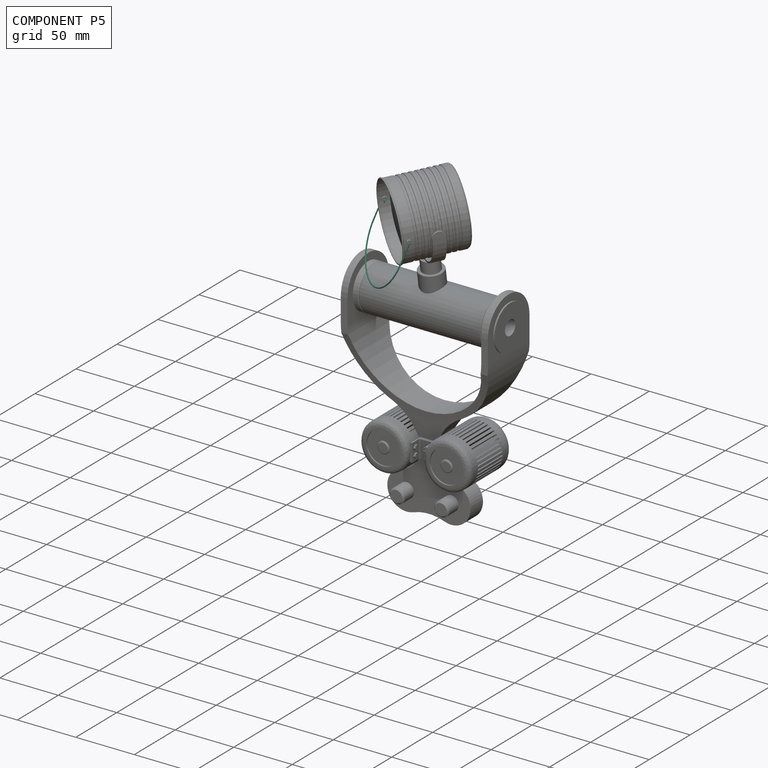
[diagram: component P5 — assembled]
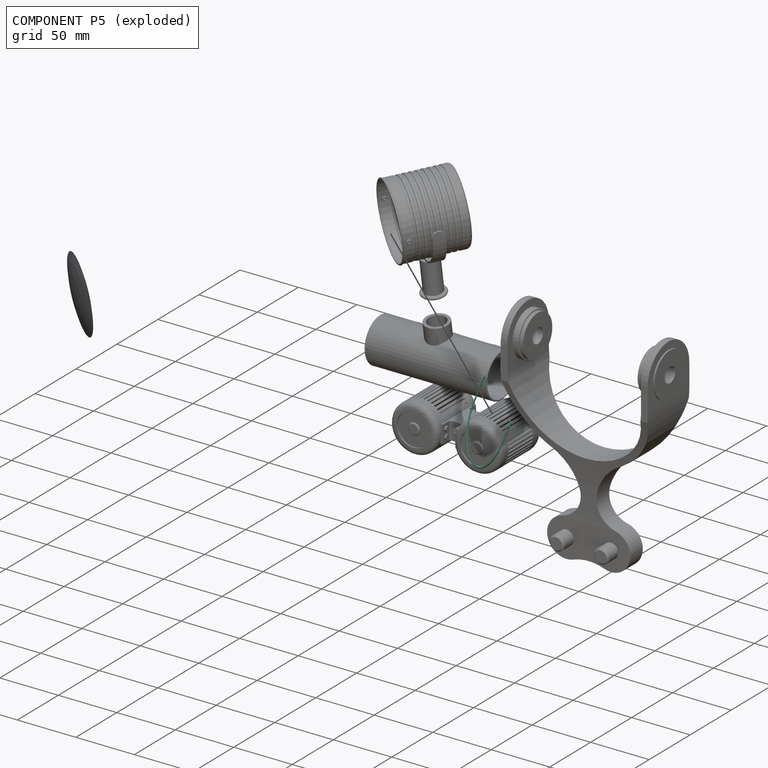
[diagram: component P5 — exploded]
COMPONENT P5 — recipe-attached (CADFS 00294739, mesh-verified: the recipe's output STEP matches this component's geometry to below the mesh-comparison resolution (tessellation chordal tolerance ~0.127 mm)).
Held by: REVOLUTE mate "handle_frontal" to P1; REVOLUTE mate "handle_frontal" to P1.
Construction recipe (FeatureScript — the CAD program that rebuilds this solid; sketch coordinates are in the units given by the * unit suffixes, e.g. mm):

FeatureScript 1511;
import(path : "onshape/std/geometry.fs", version : "1511.0");
import(path : "onshape/std/common.fs", version : "1511.0");
const mm = millimeter;
const VERTEX = EntityType.VERTEX;
const EDGE = EntityType.EDGE;
const FACE = EntityType.FACE;
const BODY = EntityType.BODY;
function v(x, y){return vector(x, y);}
function OD(order){return orderDisambiguation(order);}
function OSD(set){return originalSetDisambiguation(set);}
function TD(topology){return topologyDisambiguation(topology);}
function TDD(query){return trueDependencyDisambiguation(query);}
function sQuery(a, b, c) {return sketchEntityQuery(a, b, c);}

annotation { "Feature Type Name" : "Feature", "Feature Type Description" : "" }
export const myFeature = defineFeature(function(context is Context, id is Id, definition is map)
    precondition{}
    {
        {
            var Q0;
            Q0=qCreatedBy(makeId("Front.planeOp"),FACE);
            cPlane(context, id + "F0", {"entities" : qUnion([Q0]), "cplaneType" : CPlaneType.OFFSET, "offset" : 20.95 * mm, "width" : 152.4 * mm, "height" : 152.4 * mm});
        }
        {
            var Q0;
            Q0=qCreatedBy(id+"F0.planeOp",FACE);
            var sketch = newSketch(context, id + "F1", { "sketchPlane" : qUnion([Q0])});
            skArc(sketch, "E0", {"start": v(0, 15.65) * mm, "mid": v(23.35, 25.32) * mm, "end": v(33.02, 48.67) * mm});
            skLineSegment(sketch, "E1", {"start": v(33.02, 48.67) * mm, "end": v(33.02, 65.4) * mm});
            skLineSegment(sketch, "E2", {"start": v(31.75, 66.68) * mm, "end": v(29.8, 66.68) * mm});
            skPoint(sketch, "E3.orphan", {"position": v(0, 13.74) * mm});
            skPoint(sketch, "E4.visualSharp", {"position": v(33.02, 66.68) * mm});
            skArc(sketch, "E4.filletArc", {"start": v(33.02, 65.4) * mm, "mid": v(32.65, 66.3) * mm, "end": v(31.75, 66.68) * mm});
            skArc(sketch, "E5", {"start": v(29.8, 66.68) * mm, "mid": v(28.67, 66) * mm, "end": v(28.75, 64.68) * mm});
            skPoint(sketch, "E6.orphan", {"position": v(28.58, 66.68) * mm});
            skPoint(sketch, "E7.MirrorCS.end.orphan", {"position": v(-33.02, 48.67) * mm});
            skPoint(sketch, "E7.MirrorCS.start.orphan", {"position": v(0, 15.65) * mm});
            skSolve(sketch);
        }
        {
            var Q0;
            Q0=qCreatedBy(makeId("Right.planeOp"),FACE);
            var sketch = newSketch(context, id + "F2", { "sketchPlane" : qUnion([Q0])});
            skCircle(sketch, "E8", {"center": v(-20.96, 15.65) * mm, "radius": 0.5 * mm});
            skSolve(sketch);
        }
        {
            var Q0;
            Q0=makeQuery(id+"F2.imprint","IMPRINT",FACE,{"disambiguationData":[TD([[makeQuery(id+"F2.imprint","IMPRINT",EDGE,{"derivedFrom":sQuery(id+"F2.wireOp",EDGE,"E8")}),1.0]])]});
            var Q1;
            Q1=sQuery(id+"F1.wireOp",EDGE,"E0");
            var Q2;
            Q2=sQuery(id+"F1.wireOp",EDGE,"E1");
            var Q3;
            Q3=sQuery(id+"F1.wireOp",EDGE,"E4.filletArc");
            var Q4;
            Q4=sQuery(id+"F1.wireOp",EDGE,"E2");
            var Q5;
            Q5=sQuery(id+"F1.wireOp",EDGE,"E5");
            sweep(context, id + "F3", {"profiles" : qUnion([Q0]), "path" : qUnion([Q1, Q2, Q3, Q4, Q5])});
        }
        {
            var Q0;
            Q0=makeQuery(id+"F3.opSweep","SWEPT_BODY",BODY,{"disambiguationData":[OSD([sQuery(id+"F1.wireOp",EDGE,"E5"),sQuery(id+"F2.wireOp",EDGE,"E8")])]});
            var Q1;
            Q1=qCreatedBy(makeId("Right.planeOp"),FACE);
            mirror(context, id + "F4", {"operationType" : NewBodyOperationType.ADD, "entities" : qUnion([Q0]), "mirrorPlane" : qUnion([Q1])});
        }
        {
            var Q0;
            Q0=qCreatedBy(id+"F0.planeOp",FACE);
            var sketch = newSketch(context, id + "F5", { "sketchPlane" : qUnion([Q0])});
            skLineSegment(sketch, "E9", {"start": v(0, 66.68) * mm, "end": v(0, 0) * mm, "construction": true});
            skPoint(sketch, "E10", {"position": v(29.8, 66.68) * mm});
            skSolve(sketch);
        }
        {
            var Q0;
            Q0=makeQuery(id+"F3.opSweep","SWEPT_BODY",BODY,{"disambiguationData":[OSD([sQuery(id+"F1.wireOp",EDGE,"E5"),sQuery(id+"F2.wireOp",EDGE,"E8")])]});
            var Q1;
            Q1=sQuery(id+"F5.wireOp",EDGE,"E9");
            transform(context, id + "F6", {"entities" : qUnion([Q0]), "transformType" : TransformType.TRANSLATION_ENTITY, "oppositeDirectionEntity" : false, "transformLine" : qUnion([Q1]), "makeCopy" : false});
        }
    });
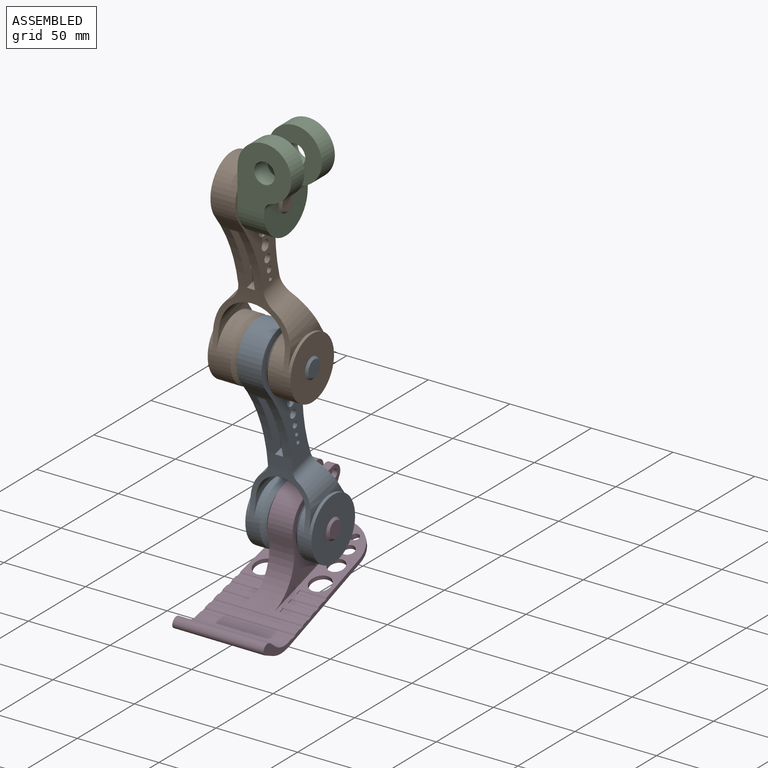
[diagram: subassembly S2 — assembled view]
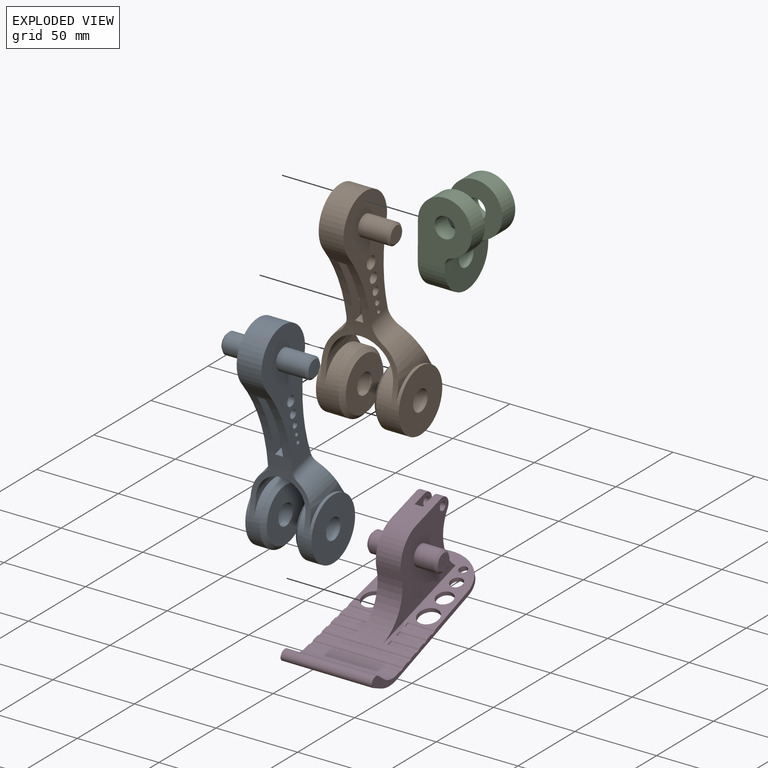
[diagram: subassembly S2 — exploded view]
SUBASSEMBLY S2 TOUR — 4 components, shown here in isolation at its own camera.

INTERNAL MATES
  1. REVOLUTE "right_ankle_sagittal": P2 <-> P15, axis (1.000, 0.000, -0.005) through (-25.15, 38.63, -292.51) mm
  2. REVOLUTE "right_knee_sagittal": P2 <-> P3, axis (-1.000, 0.000, 0.005) through (-70.39, 12.25, -191.56) mm
  3. REVOLUTE "right_hip_sagittal": P3 <-> P9, axis (1.000, 0.000, -0.005) through (-19.12, -11.40, -90.38) mm
  4. REVOLUTE "right_ankle_sagittal": P2 <-> P15, axis (1.000, 0.000, -0.005) through (-25.15, 38.63, -292.51) mm
  5. REVOLUTE "right_knee_sagittal": P2 <-> P3, axis (-1.000, 0.000, 0.005) through (-70.39, 12.25, -191.56) mm
  6. REVOLUTE "right_hip_sagittal": P3 <-> P9, axis (1.000, 0.000, -0.005) through (-19.12, -11.40, -90.38) mm

ASSEMBLY ORDER (within the subassembly)
  1. P2 — the base component [order heuristic]
  2. P3 [order heuristic]
  3. P15 [order heuristic]
  4. P9 [order heuristic]
Order-tag legend:
  [order heuristic] — this assembly is geometrically interlocked (no collision-free removal order exists), so components are listed in mate-graph order; insertion feasibility is not verified.
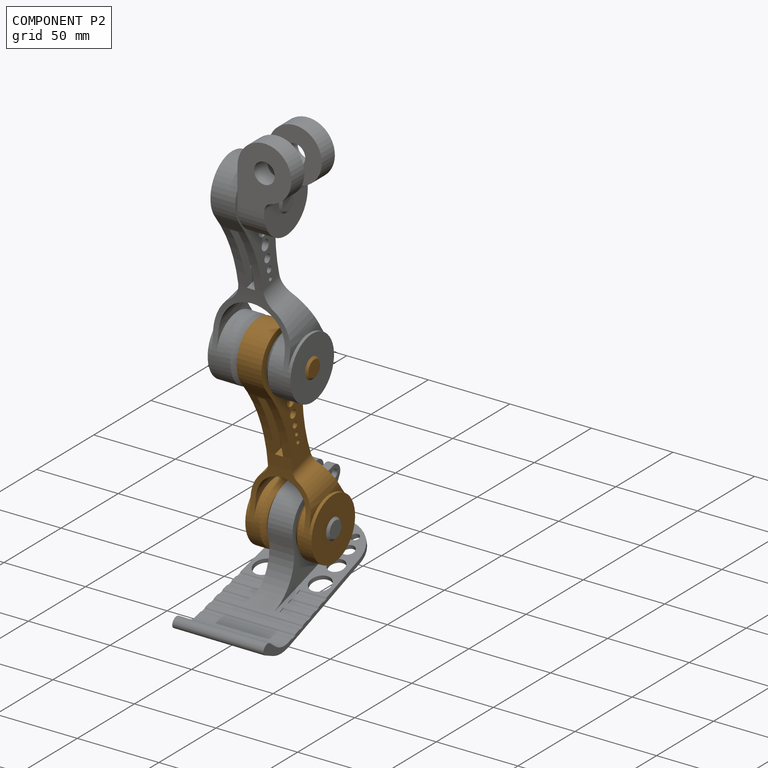
[diagram: component P2 — assembled]
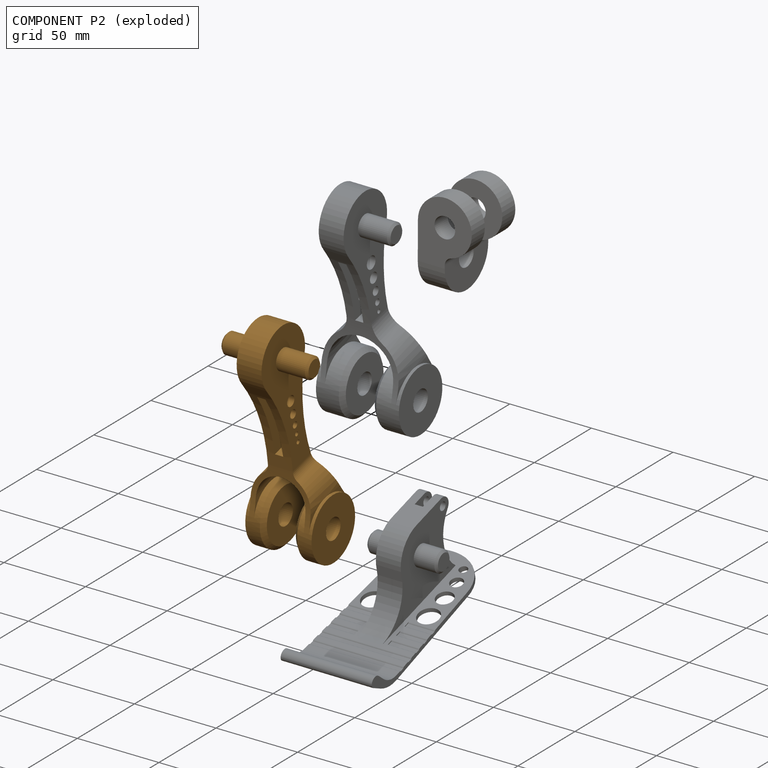
[diagram: component P2 — exploded]
COMPONENT P2 — geometry summary (no construction recipe available for this part):
  bounding box: 142.2 x 53.3 x 38.1 mm
  B-rep topology: 1 solid, 48 faces, 250 edges
  volume: 57555 mm^3 (20% of its bounding box)
  symmetry: 2-fold rotationally symmetric about the z axis; mirror-symmetric across its x mid-plane, y mid-plane
Held by: REVOLUTE mate "right_ankle_sagittal" to P15; REVOLUTE mate "right_knee_sagittal" to P3; REVOLUTE mate "right_ankle_sagittal" to P15; REVOLUTE mate "right_knee_sagittal" to P3.
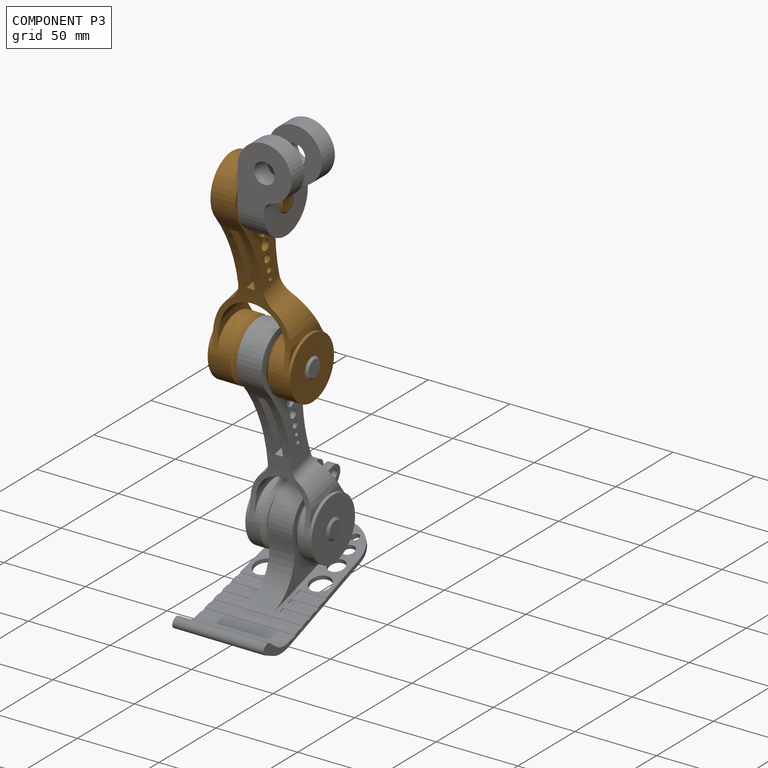
[diagram: component P3 — assembled]
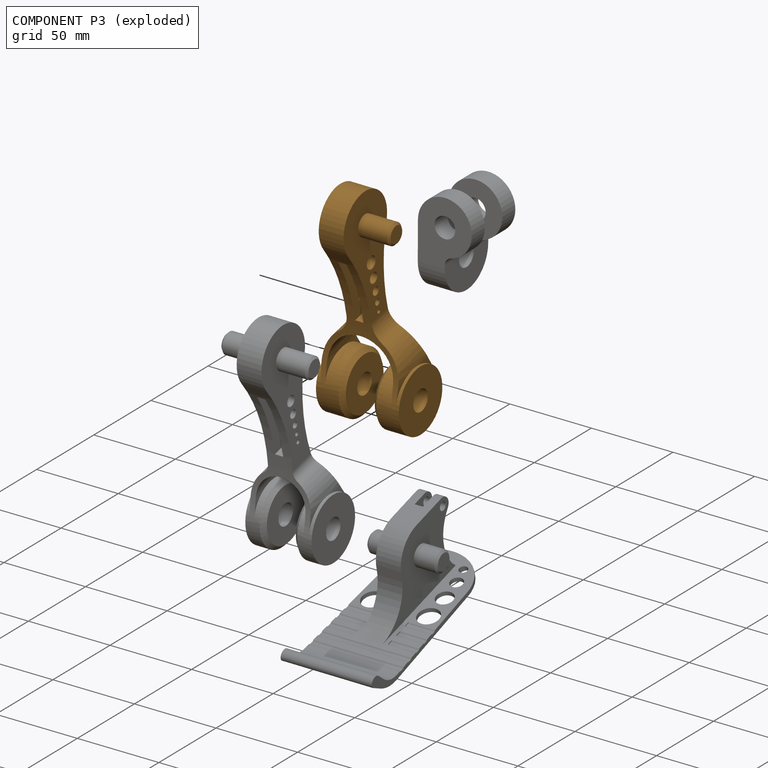
[diagram: component P3 — exploded]
COMPONENT P3 — geometry summary (no construction recipe available for this part):
  bounding box: 142.3 x 52.1 x 38.2 mm
  B-rep topology: 1 solid, 47 faces, 246 edges
  volume: 64594 mm^3 (23% of its bounding box)
  symmetry: mirror-symmetric across its y mid-plane
Held by: REVOLUTE mate "right_knee_sagittal" to P2; REVOLUTE mate "right_hip_sagittal" to P9; REVOLUTE mate "right_knee_sagittal" to P2; REVOLUTE mate "right_hip_sagittal" to P9.
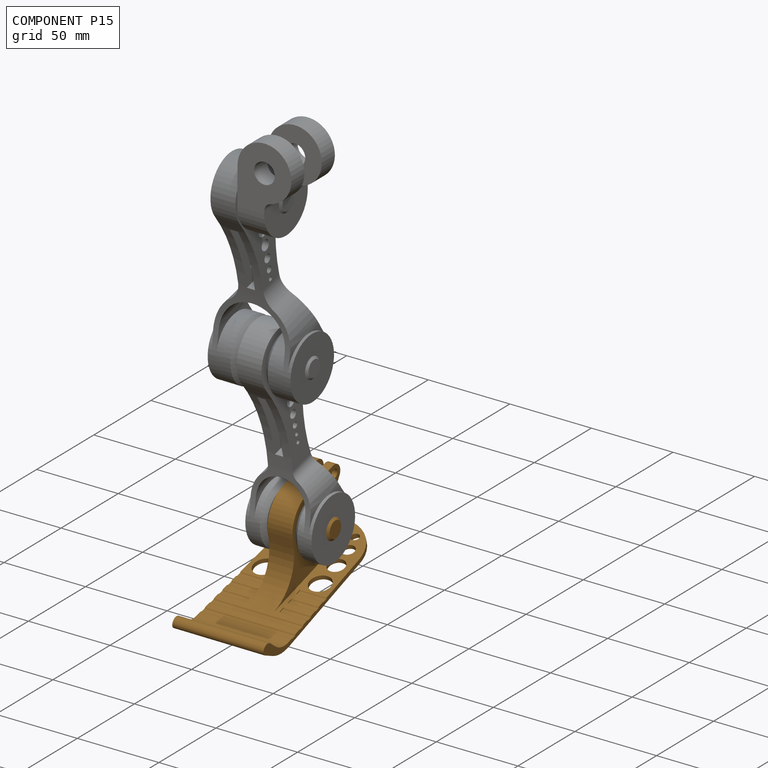
[diagram: component P15 — assembled]
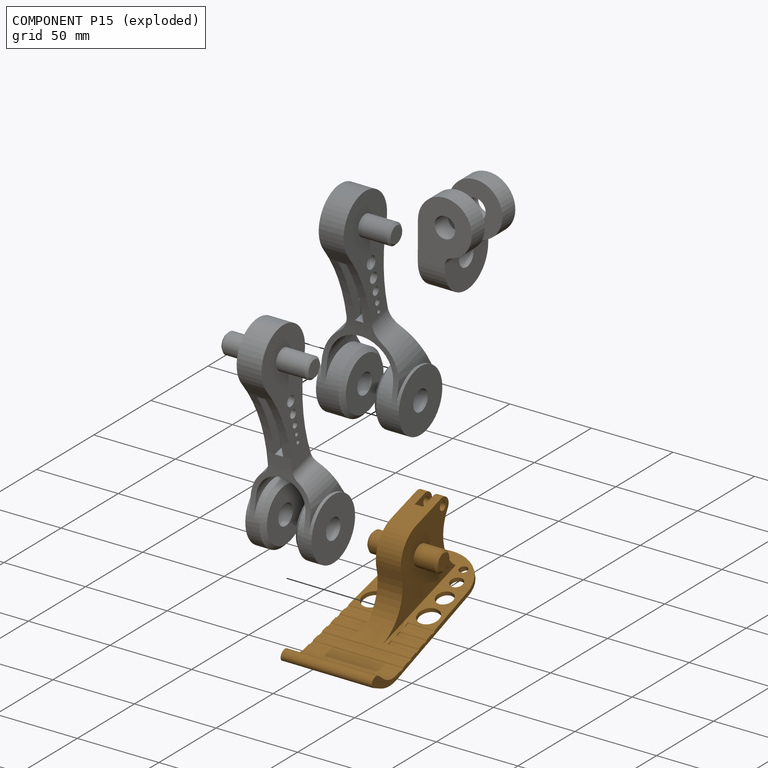
[diagram: component P15 — exploded]
COMPONENT P15 — geometry summary (no construction recipe available for this part):
  bounding box: 113.0 x 55.9 x 47.5 mm
  B-rep topology: 1 solid, 97 faces, 534 edges
  volume: 46412 mm^3 (15% of its bounding box)
  symmetry: mirror-symmetric across its x mid-plane
Held by: REVOLUTE mate "right_ankle_sagittal" to P2; REVOLUTE mate "right_ankle_sagittal" to P2.
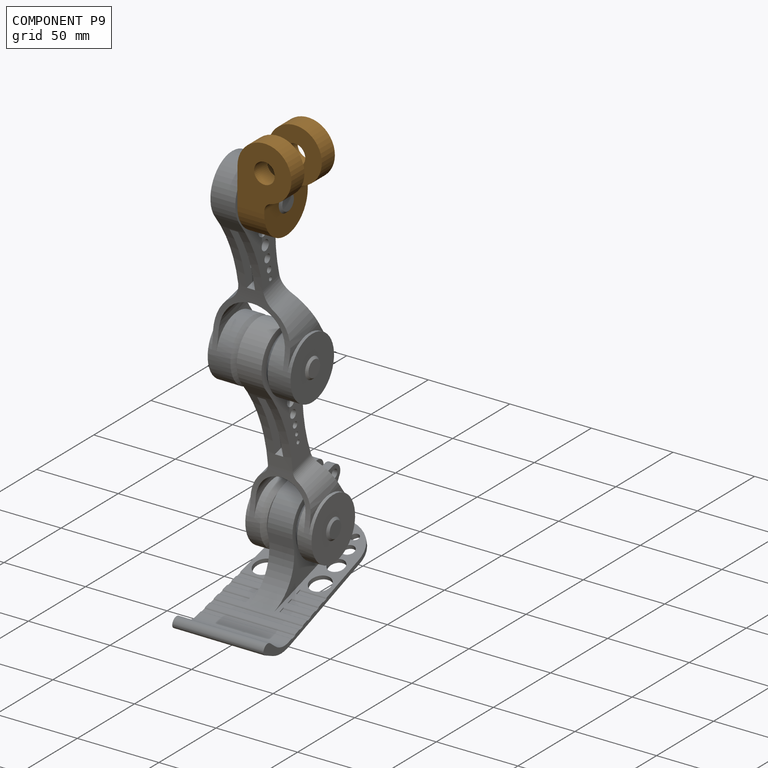
[diagram: component P9 — assembled]
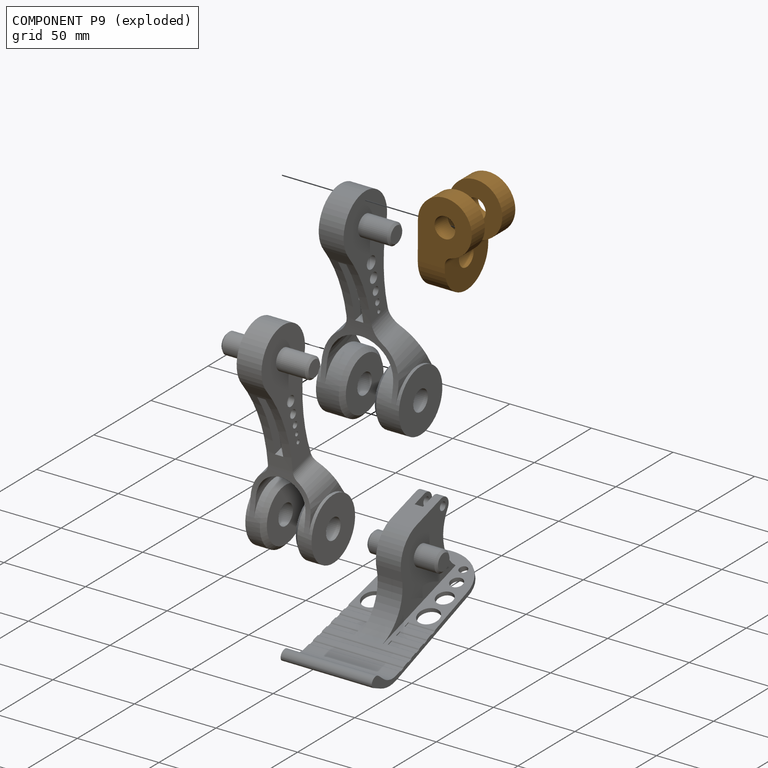
[diagram: component P9 — exploded]
COMPONENT P9 — geometry summary (no construction recipe available for this part):
  bounding box: 58.4 x 38.1 x 33.0 mm
  B-rep topology: 1 solid, 20 faces, 112 edges
  volume: 30275 mm^3 (41% of its bounding box)
  symmetry: mirror-symmetric across its y mid-plane
Held by: REVOLUTE mate "right_hip_sagittal" to P3; REVOLUTE mate "right_hip_sagittal" to P3.
